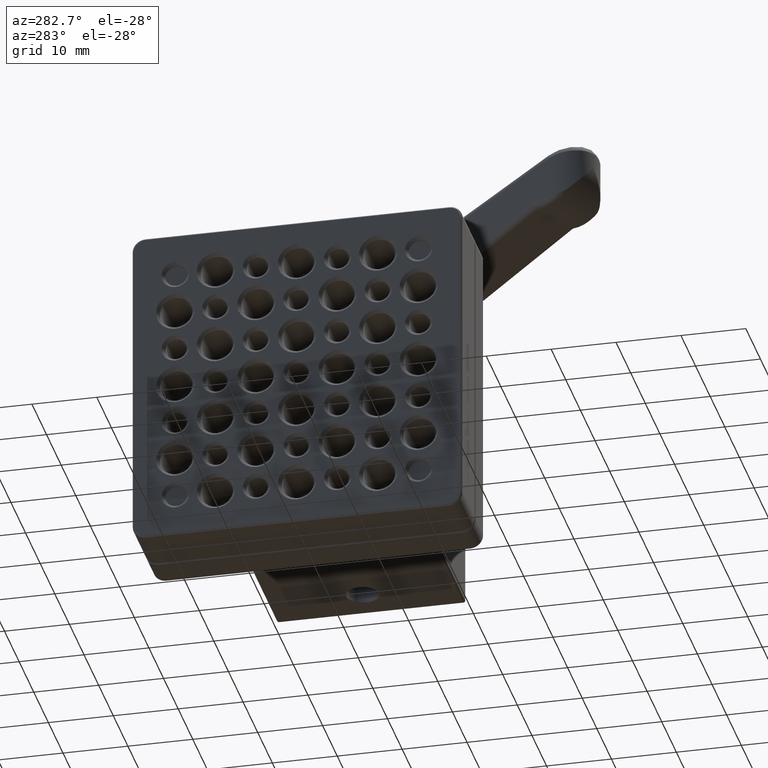
[diagram: clean part render]
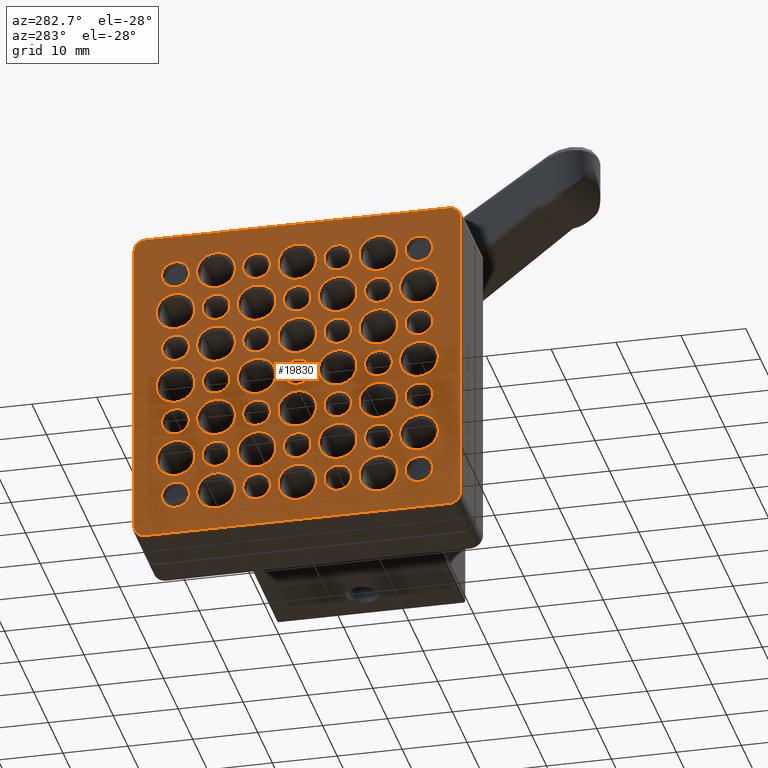
[diagram: same view with one face highlighted and labeled with its STEP entity id]
A machine part, auxiliary view. The second image highlights one B-rep face of the part: STEP entity #19830.
In plain terms, the highlighted planar face has unit normal (1, 0, 0).
Its self-contained STEP definition (entity closure, byte-faithful):
#46 = CARTESIAN_POINT ( 'NONE',  ( -4.445000000000000284, 3.435298852032811170E-15, -25.14999999999999858 ) ) ;
#116 = CARTESIAN_POINT ( 'NONE',  ( -4.445000000000000284, -12.50000000000000178, 3.249999999999997780 ) ) ;
#136 = EDGE_LOOP ( 'NONE', ( #20984, #19444 ) ) ;
#188 = ORIENTED_EDGE ( 'NONE', *, *, #4269, .F. ) ;
#215 = FACE_BOUND ( 'NONE', #1997, .T. ) ;
#222 = ORIENTED_EDGE ( 'NONE', *, *, #19142, .F. ) ;
#247 = EDGE_CURVE ( 'NONE', #18679, #21224, #13297, .T. ) ;
#262 = EDGE_CURVE ( 'NONE', #7430, #11534, #16185, .T. ) ;
#265 = AXIS2_PLACEMENT_3D ( 'NONE', #16991, #18717, #3812 ) ;
#277 = CIRCLE ( 'NONE', #16247, 2.999999999999999112 ) ;
#293 = AXIS2_PLACEMENT_3D ( 'NONE', #2072, #3174, #8685 ) ;
#294 = CIRCLE ( 'NONE', #16624, 2.999999999999999112 ) ;
#311 = CARTESIAN_POINT ( 'NONE',  ( -4.445000000000000284, -12.50000000000000000, -10.35000000000000497 ) ) ;
#344 = VERTEX_POINT ( 'NONE', #4052 ) ;
#415 = EDGE_LOOP ( 'NONE', ( #17142, #16034 ) ) ;
#436 = CARTESIAN_POINT ( 'NONE',  ( -4.445000000000000284, 12.50000000000000000, -12.50000000000000000 ) ) ;
#460 = AXIS2_PLACEMENT_3D ( 'NONE', #7865, #2864, #14508 ) ;
#488 = VERTEX_POINT ( 'NONE', #6439 ) ;
#518 = EDGE_CURVE ( 'NONE', #1577, #2208, #11676, .T. ) ;
#524 = EDGE_LOOP ( 'NONE', ( #9450, #10185 ) ) ;
#532 = FACE_BOUND ( 'NONE', #11521, .T. ) ;
#540 = CARTESIAN_POINT ( 'NONE',  ( -4.445000000000000284, 12.50000000000000000, -10.35000000000000142 ) ) ;
#543 = AXIS2_PLACEMENT_3D ( 'NONE', #16845, #1618, #7029 ) ;
#560 = EDGE_CURVE ( 'NONE', #15215, #9604, #3250, .T. ) ;
#576 = ORIENTED_EDGE ( 'NONE', *, *, #12617, .T. ) ;
#585 = CIRCLE ( 'NONE', #14153, 2.149999999999999023 ) ;
#632 = FACE_BOUND ( 'NONE', #2984, .T. ) ;
#662 = AXIS2_PLACEMENT_3D ( 'NONE', #9759, #16512, #8220 ) ;
#667 = DIRECTION ( 'NONE',  ( -1.000000000000000000, -0.000000000000000000, -0.000000000000000000 ) ) ;
#816 = CIRCLE ( 'NONE', #18873, 2.149999999999999023 ) ;
#822 = AXIS2_PLACEMENT_3D ( 'NONE', #16431, #3026, #16656 ) ;
#823 = AXIS2_PLACEMENT_3D ( 'NONE', #14444, #5947, #20753 ) ;
#880 = CARTESIAN_POINT ( 'NONE',  ( -4.445000000000000284, -25.14999999999999858, 0.000000000000000000 ) ) ;
#928 = AXIS2_PLACEMENT_3D ( 'NONE', #5617, #17374, #2472 ) ;
#970 = EDGE_CURVE ( 'NONE', #3542, #7166, #3891, .T. ) ;
#981 = CARTESIAN_POINT ( 'NONE',  ( -4.445000000000000284, 12.50000000000000000, 10.35000000000000142 ) ) ;
#1003 = DIRECTION ( 'NONE',  ( 0.000000000000000000, 0.000000000000000000, 1.000000000000000000 ) ) ;
#1050 = CARTESIAN_POINT ( 'NONE',  ( -4.445000000000002061, -6.250000000000001776, 6.249999999999998224 ) ) ;
#1056 = VERTEX_POINT ( 'NONE', #4525 ) ;
#1072 = DIRECTION ( 'NONE',  ( 0.000000000000000000, 0.000000000000000000, 1.000000000000000000 ) ) ;
#1113 = CARTESIAN_POINT ( 'NONE',  ( -4.445000000000000284, 12.50000000000000000, 2.149999999999999023 ) ) ;
#1116 = DIRECTION ( 'NONE',  ( -1.000000000000000000, -0.000000000000000000, -0.000000000000000000 ) ) ;
#1136 = DIRECTION ( 'NONE',  ( -1.000000000000000000, -0.000000000000000000, -0.000000000000000000 ) ) ;
#1143 = DIRECTION ( 'NONE',  ( -1.000000000000000000, -0.000000000000000000, -0.000000000000000000 ) ) ;
#1156 = CARTESIAN_POINT ( 'NONE',  ( -4.445000000000000284, -12.50000000000000000, -14.65000000000000391 ) ) ;
#1159 = ORIENTED_EDGE ( 'NONE', *, *, #8249, .F. ) ;
#1173 = AXIS2_PLACEMENT_3D ( 'NONE', #10643, #2479, #4306 ) ;
#1174 = DIRECTION ( 'NONE',  ( 0.000000000000000000, 0.000000000000000000, 1.000000000000000000 ) ) ;
#1183 = CARTESIAN_POINT ( 'NONE',  ( -4.445000000000002061, -6.250000000000001776, 8.399999999999998579 ) ) ;
#1192 = ORIENTED_EDGE ( 'NONE', *, *, #13119, .T. ) ;
#1234 = DIRECTION ( 'NONE',  ( 0.000000000000000000, 0.000000000000000000, 1.000000000000000000 ) ) ;
#1254 = DIRECTION ( 'NONE',  ( 0.000000000000000000, 0.000000000000000000, 1.000000000000000000 ) ) ;
#1287 = DIRECTION ( 'NONE',  ( 0.000000000000000000, 0.000000000000000000, 1.000000000000000000 ) ) ;
#1297 = EDGE_LOOP ( 'NONE', ( #3658, #8536 ) ) ;
#1319 = EDGE_LOOP ( 'NONE', ( #3066, #18265 ) ) ;
#1323 = DIRECTION ( 'NONE',  ( 0.000000000000000000, 0.000000000000000000, 1.000000000000000000 ) ) ;
#1326 = VERTEX_POINT ( 'NONE', #11644 ) ;
#1329 = DIRECTION ( 'NONE',  ( 0.000000000000000000, 0.000000000000000000, 1.000000000000000000 ) ) ;
#1336 = DIRECTION ( 'NONE',  ( 0.000000000000000000, 0.000000000000000000, -1.000000000000000000 ) ) ;
#1354 = CARTESIAN_POINT ( 'NONE',  ( -4.445000000000000284, 0.000000000000000000, 2.149999999999998135 ) ) ;
#1356 = CIRCLE ( 'NONE', #6909, 3.000000000000000888 ) ;
#1412 = FACE_BOUND ( 'NONE', #16004, .T. ) ;
#1442 = DIRECTION ( 'NONE',  ( -1.000000000000000000, -0.000000000000000000, -0.000000000000000000 ) ) ;
#1481 = CARTESIAN_POINT ( 'NONE',  ( -4.445000000000000284, -1.734723475976807094E-15, 21.75000000000000711 ) ) ;
#1484 = EDGE_LOOP ( 'NONE', ( #16476, #6972 ) ) ;
#1493 = AXIS2_PLACEMENT_3D ( 'NONE', #21374, #13219, #16808 ) ;
#1499 = CARTESIAN_POINT ( 'NONE',  ( -4.445000000000000284, 12.50000000000000000, 0.000000000000000000 ) ) ;
#1501 = CARTESIAN_POINT ( 'NONE',  ( -4.445000000000000284, -6.249999999999998224, -12.50000000000000355 ) ) ;
#1522 = AXIS2_PLACEMENT_3D ( 'NONE', #8282, #10035, #4795 ) ;
#1523 = DIRECTION ( 'NONE',  ( 0.000000000000000000, 0.000000000000000000, 1.000000000000000000 ) ) ;
#1532 = FACE_BOUND ( 'NONE', #14782, .T. ) ;
#1577 = VERTEX_POINT ( 'NONE', #9884 ) ;
#1618 = DIRECTION ( 'NONE',  ( -1.000000000000000000, -0.000000000000000000, -0.000000000000000000 ) ) ;
#1756 = CARTESIAN_POINT ( 'NONE',  ( -4.445000000000002061, 6.249999999999998224, -18.75000000000000000 ) ) ;
#1856 = FACE_BOUND ( 'NONE', #15157, .T. ) ;
#1878 = EDGE_LOOP ( 'NONE', ( #8532, #7066 ) ) ;
#1882 = CARTESIAN_POINT ( 'NONE',  ( -4.445000000000000284, -18.75000000000000355, -9.500000000000007105 ) ) ;
#1951 = PLANE ( 'NONE',  #5997 ) ;
#1960 = ORIENTED_EDGE ( 'NONE', *, *, #518, .T. ) ;
#1997 = EDGE_LOOP ( 'NONE', ( #17041, #19308 ) ) ;
#2027 = ORIENTED_EDGE ( 'NONE', *, *, #20220, .T. ) ;
#2055 = EDGE_LOOP ( 'NONE', ( #14277, #14211 ) ) ;
#2063 = CARTESIAN_POINT ( 'NONE',  ( -4.445000000000000284, 6.250000000000001776, 12.50000000000000000 ) ) ;
#2072 = CARTESIAN_POINT ( 'NONE',  ( -4.445000000000002061, -18.75000000000000711, -18.75000000000000355 ) ) ;
#2078 = CIRCLE ( 'NONE', #21164, 2.999999999999999112 ) ;
#2082 = AXIS2_PLACEMENT_3D ( 'NONE', #10931, #2660, #1254 ) ;
#2100 = DIRECTION ( 'NONE',  ( -1.000000000000000000, -0.000000000000000000, -0.000000000000000000 ) ) ;
#2111 = DIRECTION ( 'NONE',  ( -1.000000000000000000, -0.000000000000000000, -0.000000000000000000 ) ) ;
#2166 = FACE_BOUND ( 'NONE', #11344, .T. ) ;
#2208 = VERTEX_POINT ( 'NONE', #20289 ) ;
#2213 = VERTEX_POINT ( 'NONE', #12125 ) ;
#2237 = VERTEX_POINT ( 'NONE', #18649 ) ;
#2261 = CARTESIAN_POINT ( 'NONE',  ( -4.445000000000000284, 6.250000000000001776, -3.000000000000000888 ) ) ;
#2266 = FACE_BOUND ( 'NONE', #6874, .T. ) ;
#2293 = CIRCLE ( 'NONE', #8877, 2.149999999999999023 ) ;
#2306 = EDGE_LOOP ( 'NONE', ( #3920, #3823 ) ) ;
#2307 = AXIS2_PLACEMENT_3D ( 'NONE', #18256, #5100, #11630 ) ;
#2343 = CIRCLE ( 'NONE', #265, 2.149999999999999023 ) ;
#2384 = CARTESIAN_POINT ( 'NONE',  ( -4.445000000000000284, -18.75000000000000355, 2.999999999999993783 ) ) ;
#2400 = EDGE_CURVE ( 'NONE', #11235, #5235, #5990, .T. ) ;
#2433 = CARTESIAN_POINT ( 'NONE',  ( -4.445000000000000284, -12.50000000000000000, -12.50000000000000355 ) ) ;
#2466 = DIRECTION ( 'NONE',  ( -1.000000000000000000, -0.000000000000000000, -0.000000000000000000 ) ) ;
#2472 = DIRECTION ( 'NONE',  ( 0.000000000000000000, 0.000000000000000000, 1.000000000000000000 ) ) ;
#2479 = DIRECTION ( 'NONE',  ( -1.000000000000000000, -0.000000000000000000, -0.000000000000000000 ) ) ;
#2502 = AXIS2_PLACEMENT_3D ( 'NONE', #7519, #4257, #10900 ) ;
#2504 = DIRECTION ( 'NONE',  ( -1.000000000000000000, -0.000000000000000000, -0.000000000000000000 ) ) ;
#2517 = AXIS2_PLACEMENT_3D ( 'NONE', #9213, #6855, #4093 ) ;
#2519 = AXIS2_PLACEMENT_3D ( 'NONE', #19656, #4857, #9657 ) ;
#2523 = ORIENTED_EDGE ( 'NONE', *, *, #17241, .F. ) ;
#2529 = CIRCLE ( 'NONE', #1493, 2.999999999999999112 ) ;
#2552 = CIRCLE ( 'NONE', #10203, 2.149999999999999023 ) ;
#2642 = DIRECTION ( 'NONE',  ( 0.000000000000000000, 0.000000000000000000, 1.000000000000000000 ) ) ;
#2657 = EDGE_CURVE ( 'NONE', #3247, #20503, #14514, .T. ) ;
#2660 = DIRECTION ( 'NONE',  ( -1.000000000000000000, -0.000000000000000000, -0.000000000000000000 ) ) ;
#2661 = CARTESIAN_POINT ( 'NONE',  ( -4.445000000000002061, 6.249999999999998224, -16.60000000000000142 ) ) ;
#2666 = CARTESIAN_POINT ( 'NONE',  ( -4.445000000000002061, 18.75000000000000000, 6.250000000000001776 ) ) ;
#2680 = CARTESIAN_POINT ( 'NONE',  ( -4.445000000000000284, 12.49999999999999822, 9.250000000000003553 ) ) ;
#2694 = CIRCLE ( 'NONE', #3384, 2.999999999999999112 ) ;
#2730 = DIRECTION ( 'NONE',  ( -1.000000000000000000, -0.000000000000000000, -0.000000000000000000 ) ) ;
#2741 = CARTESIAN_POINT ( 'NONE',  ( -4.445000000000000284, -23.40000000000000213, 23.40000000000000213 ) ) ;
#2743 = CARTESIAN_POINT ( 'NONE',  ( -4.445000000000000284, 12.49999999999999822, 18.75000000000000711 ) ) ;
#2770 = CARTESIAN_POINT ( 'NONE',  ( -4.445000000000002061, -6.250000000000001776, -18.75000000000000355 ) ) ;
#2812 = VERTEX_POINT ( 'NONE', #8875 ) ;
#2843 = CARTESIAN_POINT ( 'NONE',  ( -4.445000000000000284, -1.717649426016405782E-15, 25.15000000000000213 ) ) ;
#2858 = EDGE_CURVE ( 'NONE', #4379, #18760, #12412, .T. ) ;
#2864 = DIRECTION ( 'NONE',  ( -1.000000000000000000, -0.000000000000000000, -0.000000000000000000 ) ) ;
#2912 = CARTESIAN_POINT ( 'NONE',  ( -4.445000000000000284, 12.49999999999999822, -6.249999999999998224 ) ) ;
#2915 = DIRECTION ( 'NONE',  ( -1.000000000000000000, -0.000000000000000000, -0.000000000000000000 ) ) ;
#2917 = ORIENTED_EDGE ( 'NONE', *, *, #3407, .F. ) ;
#2921 = FACE_BOUND ( 'NONE', #16108, .T. ) ;
#2936 = CARTESIAN_POINT ( 'NONE',  ( -4.445000000000000284, -6.249999999999998224, 2.999999999999996447 ) ) ;
#2956 = CARTESIAN_POINT ( 'NONE',  ( -4.445000000000000284, 0.000000000000000000, -12.50000000000000178 ) ) ;
#2984 = EDGE_LOOP ( 'NONE', ( #15612, #18577 ) ) ;
#3006 = EDGE_CURVE ( 'NONE', #16138, #488, #13823, .T. ) ;
#3007 = CARTESIAN_POINT ( 'NONE',  ( -4.445000000000002061, 18.75000000000000000, -20.89999999999999858 ) ) ;
#3026 = DIRECTION ( 'NONE',  ( -1.000000000000000000, -0.000000000000000000, -0.000000000000000000 ) ) ;
#3027 = EDGE_CURVE ( 'NONE', #5491, #9509, #15552, .T. ) ;
#3029 = DIRECTION ( 'NONE',  ( 0.000000000000000000, 0.000000000000000000, 1.000000000000000000 ) ) ;
#3034 = DIRECTION ( 'NONE',  ( 0.000000000000000000, 0.000000000000000000, 1.000000000000000000 ) ) ;
#3052 = EDGE_LOOP ( 'NONE', ( #11972, #19829 ) ) ;
#3066 = ORIENTED_EDGE ( 'NONE', *, *, #21314, .F. ) ;
#3096 = CIRCLE ( 'NONE', #15605, 2.999999999999999112 ) ;
#3144 = DIRECTION ( 'NONE',  ( 0.000000000000000000, 0.000000000000000000, 1.000000000000000000 ) ) ;
#3171 = DIRECTION ( 'NONE',  ( 0.000000000000000000, 0.000000000000000000, 1.000000000000000000 ) ) ;
#3174 = DIRECTION ( 'NONE',  ( -1.000000000000000000, -0.000000000000000000, -0.000000000000000000 ) ) ;
#3194 = CIRCLE ( 'NONE', #15357, 2.149999999999999023 ) ;
#3230 = EDGE_CURVE ( 'NONE', #19699, #18522, #17312, .T. ) ;
#3235 = ORIENTED_EDGE ( 'NONE', *, *, #17087, .F. ) ;
#3247 = VERTEX_POINT ( 'NONE', #15332 ) ;
#3250 = CIRCLE ( 'NONE', #15415, 3.000000000000000888 ) ;
#3274 = VERTEX_POINT ( 'NONE', #2384 ) ;
#3336 = DIRECTION ( 'NONE',  ( 0.000000000000000000, 0.000000000000000000, 1.000000000000000000 ) ) ;
#3384 = AXIS2_PLACEMENT_3D ( 'NONE', #9730, #14405, #16249 ) ;
#3407 = EDGE_CURVE ( 'NONE', #13461, #10469, #5494, .T. ) ;
#3412 = DIRECTION ( 'NONE',  ( -1.000000000000000000, -0.000000000000000000, -0.000000000000000000 ) ) ;
#3419 = CARTESIAN_POINT ( 'NONE',  ( -4.445000000000000284, 12.50000000000000000, 0.000000000000000000 ) ) ;
#3464 = FACE_BOUND ( 'NONE', #13234, .T. ) ;
#3472 = EDGE_CURVE ( 'NONE', #15913, #15127, #6885, .T. ) ;
#3507 = DIRECTION ( 'NONE',  ( 0.000000000000000000, 0.000000000000000000, 1.000000000000000000 ) ) ;
#3529 = DIRECTION ( 'NONE',  ( -1.000000000000000000, -0.000000000000000000, -0.000000000000000000 ) ) ;
#3537 = VERTEX_POINT ( 'NONE', #6391 ) ;
#3542 = VERTEX_POINT ( 'NONE', #1183 ) ;
#3579 = FACE_BOUND ( 'NONE', #14852, .T. ) ;
#3636 = DIRECTION ( 'NONE',  ( -1.000000000000000000, -0.000000000000000000, -0.000000000000000000 ) ) ;
#3647 = ORIENTED_EDGE ( 'NONE', *, *, #19529, .F. ) ;
#3658 = ORIENTED_EDGE ( 'NONE', *, *, #10951, .F. ) ;
#3686 = AXIS2_PLACEMENT_3D ( 'NONE', #19281, #16132, #1234 ) ;
#3700 = EDGE_CURVE ( 'NONE', #16082, #7435, #10671, .T. ) ;
#3703 = DIRECTION ( 'NONE',  ( 0.000000000000000000, 0.000000000000000000, 1.000000000000000000 ) ) ;
#3724 = VERTEX_POINT ( 'NONE', #10776 ) ;
#3728 = CARTESIAN_POINT ( 'NONE',  ( -4.445000000000000284, -1.734723475976807094E-15, -6.250000000000000000 ) ) ;
#3763 = CARTESIAN_POINT ( 'NONE',  ( -4.445000000000000284, 23.40000000000000213, 23.40000000000000568 ) ) ;
#3783 = FACE_BOUND ( 'NONE', #6298, .T. ) ;
#3812 = DIRECTION ( 'NONE',  ( 0.000000000000000000, 0.000000000000000000, 1.000000000000000000 ) ) ;
#3823 = ORIENTED_EDGE ( 'NONE', *, *, #16775, .F. ) ;
#3834 = DIRECTION ( 'NONE',  ( -1.000000000000000000, -0.000000000000000000, -0.000000000000000000 ) ) ;
#3857 = VERTEX_POINT ( 'NONE', #15328 ) ;
#3860 = VERTEX_POINT ( 'NONE', #9904 ) ;
#3872 = DIRECTION ( 'NONE',  ( 0.000000000000000000, 0.000000000000000000, 1.000000000000000000 ) ) ;
#3887 = CIRCLE ( 'NONE', #4577, 2.999999999999999112 ) ;
#3891 = CIRCLE ( 'NONE', #6672, 2.149999999999999023 ) ;
#3913 = CIRCLE ( 'NONE', #12253, 2.149999999999999023 ) ;
#3920 = ORIENTED_EDGE ( 'NONE', *, *, #970, .F. ) ;
#3974 = DIRECTION ( 'NONE',  ( -1.000000000000000000, -0.000000000000000000, -0.000000000000000000 ) ) ;
#3997 = DIRECTION ( 'NONE',  ( 0.000000000000000000, 0.000000000000000000, 1.000000000000000000 ) ) ;
#4051 = AXIS2_PLACEMENT_3D ( 'NONE', #15777, #14149, #12608 ) ;
#4052 = CARTESIAN_POINT ( 'NONE',  ( -4.445000000000000284, -18.75000000000000355, -3.000000000000004441 ) ) ;
#4085 = VERTEX_POINT ( 'NONE', #311 ) ;
#4093 = DIRECTION ( 'NONE',  ( 0.000000000000000000, 0.000000000000000000, 1.000000000000000000 ) ) ;
#4136 = VERTEX_POINT ( 'NONE', #11626 ) ;
#4138 = EDGE_LOOP ( 'NONE', ( #9931, #19399 ) ) ;
#4157 = DIRECTION ( 'NONE',  ( -1.000000000000000000, -0.000000000000000000, -0.000000000000000000 ) ) ;
#4250 = EDGE_CURVE ( 'NONE', #21248, #16505, #11380, .T. ) ;
#4256 = CARTESIAN_POINT ( 'NONE',  ( -4.445000000000000284, -12.50000000000000178, 9.250000000000000000 ) ) ;
#4257 = DIRECTION ( 'NONE',  ( -1.000000000000000000, -0.000000000000000000, -0.000000000000000000 ) ) ;
#4266 = EDGE_CURVE ( 'NONE', #7151, #5141, #2694, .T. ) ;
#4269 = EDGE_CURVE ( 'NONE', #3860, #2237, #277, .T. ) ;
#4271 = CARTESIAN_POINT ( 'NONE',  ( -4.445000000000000284, -6.249999999999998224, -3.469446951953614189E-15 ) ) ;
#4302 = CARTESIAN_POINT ( 'NONE',  ( -4.445000000000000284, -12.50000000000000178, -6.250000000000001776 ) ) ;
#4306 = DIRECTION ( 'NONE',  ( 0.000000000000000000, 0.000000000000000000, 1.000000000000000000 ) ) ;
#4376 = DIRECTION ( 'NONE',  ( 0.000000000000000000, 0.000000000000000000, 1.000000000000000000 ) ) ;
#4379 = VERTEX_POINT ( 'NONE', #9944 ) ;
#4413 = DIRECTION ( 'NONE',  ( -1.000000000000000000, -0.000000000000000000, -0.000000000000000000 ) ) ;
#4478 = DIRECTION ( 'NONE',  ( 0.000000000000000000, 0.000000000000000000, 1.000000000000000000 ) ) ;
#4490 = CIRCLE ( 'NONE', #5540, 3.000000000000000000 ) ;
#4517 = EDGE_CURVE ( 'NONE', #6117, #17267, #14870, .T. ) ;
#4518 = CARTESIAN_POINT ( 'NONE',  ( -4.445000000000000284, 0.000000000000000000, -1.734723475976807094E-15 ) ) ;
#4520 = AXIS2_PLACEMENT_3D ( 'NONE', #8095, #14744, #9857 ) ;
#4525 = CARTESIAN_POINT ( 'NONE',  ( -4.445000000000000284, 23.40000000000000213, 25.15000000000000213 ) ) ;
#4568 = DIRECTION ( 'NONE',  ( -1.000000000000000000, -0.000000000000000000, -0.000000000000000000 ) ) ;
#4577 = AXIS2_PLACEMENT_3D ( 'NONE', #11205, #17944, #3034 ) ;
#4584 = VERTEX_POINT ( 'NONE', #15687 ) ;
#4590 = VERTEX_POINT ( 'NONE', #15471 ) ;
#4636 = EDGE_CURVE ( 'NONE', #9074, #6011, #21121, .T. ) ;
#4657 = EDGE_CURVE ( 'NONE', #13057, #17937, #10012, .T. ) ;
#4669 = EDGE_LOOP ( 'NONE', ( #18682, #17745 ) ) ;
#4685 = EDGE_CURVE ( 'NONE', #7388, #10304, #14184, .T. ) ;
#4721 = ORIENTED_EDGE ( 'NONE', *, *, #18046, .T. ) ;
#4752 = EDGE_CURVE ( 'NONE', #18715, #2812, #10703, .T. ) ;
#4790 = CARTESIAN_POINT ( 'NONE',  ( -4.445000000000000284, -18.75000000000000355, -15.50000000000000533 ) ) ;
#4795 = DIRECTION ( 'NONE',  ( 0.000000000000000000, 0.000000000000000000, 1.000000000000000000 ) ) ;
#4857 = DIRECTION ( 'NONE',  ( -1.000000000000000000, -0.000000000000000000, -0.000000000000000000 ) ) ;
#4916 = AXIS2_PLACEMENT_3D ( 'NONE', #3763, #8980, #20624 ) ;
#4919 = ORIENTED_EDGE ( 'NONE', *, *, #11965, .F. ) ;
#4954 = VERTEX_POINT ( 'NONE', #18381 ) ;
#4968 = AXIS2_PLACEMENT_3D ( 'NONE', #12074, #8800, #13605 ) ;
#4973 = AXIS2_PLACEMENT_3D ( 'NONE', #6070, #20669, #19462 ) ;
#4984 = VERTEX_POINT ( 'NONE', #11658 ) ;
#5015 = ORIENTED_EDGE ( 'NONE', *, *, #7110, .F. ) ;
#5017 = CARTESIAN_POINT ( 'NONE',  ( -4.445000000000002061, -6.250000000000001776, 4.099999999999999645 ) ) ;
#5018 = DIRECTION ( 'NONE',  ( 0.000000000000000000, 0.000000000000000000, 1.000000000000000000 ) ) ;
#5033 = ORIENTED_EDGE ( 'NONE', *, *, #12113, .F. ) ;
#5038 = VERTEX_POINT ( 'NONE', #13927 ) ;
#5068 = CARTESIAN_POINT ( 'NONE',  ( -4.445000000000002061, -6.250000000000001776, -20.90000000000000213 ) ) ;
#5087 = CIRCLE ( 'NONE', #17248, 2.999999999999999112 ) ;
#5100 = DIRECTION ( 'NONE',  ( -1.000000000000000000, -0.000000000000000000, -0.000000000000000000 ) ) ;
#5102 = AXIS2_PLACEMENT_3D ( 'NONE', #16032, #7437, #2642 ) ;
#5141 = VERTEX_POINT ( 'NONE', #11078 ) ;
#5186 = ORIENTED_EDGE ( 'NONE', *, *, #4250, .F. ) ;
#5193 = ORIENTED_EDGE ( 'NONE', *, *, #19894, .F. ) ;
#5215 = FACE_BOUND ( 'NONE', #10959, .T. ) ;
#5235 = VERTEX_POINT ( 'NONE', #6498 ) ;
#5241 = ORIENTED_EDGE ( 'NONE', *, *, #16031, .F. ) ;
#5278 = CARTESIAN_POINT ( 'NONE',  ( -4.445000000000002061, -18.75000000000000711, -8.400000000000002132 ) ) ;
#5281 = EDGE_CURVE ( 'NONE', #4954, #16772, #7237, .T. ) ;
#5287 = VECTOR ( 'NONE', #12507, 1000.000000000000000 ) ;
#5334 = VECTOR ( 'NONE', #5781, 1000.000000000000000 ) ;
#5365 = DIRECTION ( 'NONE',  ( -1.000000000000000000, -0.000000000000000000, -0.000000000000000000 ) ) ;
#5414 = DIRECTION ( 'NONE',  ( -1.000000000000000000, -0.000000000000000000, -0.000000000000000000 ) ) ;
#5464 = CARTESIAN_POINT ( 'NONE',  ( -4.445000000000000284, -23.39999999999999858, 25.14999999999999858 ) ) ;
#5491 = VERTEX_POINT ( 'NONE', #15635 ) ;
#5494 = CIRCLE ( 'NONE', #20106, 2.149999999999999023 ) ;
#5523 = FACE_BOUND ( 'NONE', #1878, .T. ) ;
#5540 = AXIS2_PLACEMENT_3D ( 'NONE', #3728, #20492, #8728 ) ;
#5546 = EDGE_CURVE ( 'NONE', #19802, #12229, #19390, .T. ) ;
#5548 = EDGE_CURVE ( 'NONE', #20118, #3857, #11771, .T. ) ;
#5554 = DIRECTION ( 'NONE',  ( 0.000000000000000000, 0.000000000000000000, 1.000000000000000000 ) ) ;
#5582 = EDGE_CURVE ( 'NONE', #16218, #16614, #6200, .T. ) ;
#5617 = CARTESIAN_POINT ( 'NONE',  ( -4.445000000000000284, 18.75000000000000355, 12.50000000000000000 ) ) ;
#5642 = CARTESIAN_POINT ( 'NONE',  ( -4.445000000000002061, -18.75000000000000711, 6.249999999999998224 ) ) ;
#5648 = CIRCLE ( 'NONE', #460, 2.150000000000000799 ) ;
#5676 = CARTESIAN_POINT ( 'NONE',  ( -4.445000000000000284, 12.50000000000000000, -12.50000000000000000 ) ) ;
#5678 = VERTEX_POINT ( 'NONE', #10299 ) ;
#5700 = ORIENTED_EDGE ( 'NONE', *, *, #12400, .F. ) ;
#5715 = CARTESIAN_POINT ( 'NONE',  ( -4.445000000000000284, -12.50000000000000178, 21.75000000000000711 ) ) ;
#5733 = CARTESIAN_POINT ( 'NONE',  ( -4.445000000000000284, -12.50000000000000178, 18.75000000000000711 ) ) ;
#5781 = DIRECTION ( 'NONE',  ( 0.000000000000000000, 0.000000000000000000, -1.000000000000000000 ) ) ;
#5787 = DIRECTION ( 'NONE',  ( -1.000000000000000000, -0.000000000000000000, -0.000000000000000000 ) ) ;
#5828 = ORIENTED_EDGE ( 'NONE', *, *, #12704, .F. ) ;
#5885 = CARTESIAN_POINT ( 'NONE',  ( -4.445000000000000284, 18.75000000000000355, 0.000000000000000000 ) ) ;
#5930 = ORIENTED_EDGE ( 'NONE', *, *, #18251, .F. ) ;
#5947 = DIRECTION ( 'NONE',  ( -1.000000000000000000, -0.000000000000000000, -0.000000000000000000 ) ) ;
#5958 = VERTEX_POINT ( 'NONE', #13394 ) ;
#5965 = ORIENTED_EDGE ( 'NONE', *, *, #8188, .F. ) ;
#5979 = CIRCLE ( 'NONE', #16777, 3.000000000000000888 ) ;
#5990 = CIRCLE ( 'NONE', #10173, 3.000000000000000000 ) ;
#5991 = ORIENTED_EDGE ( 'NONE', *, *, #12165, .F. ) ;
#5997 = AXIS2_PLACEMENT_3D ( 'NONE', #8785, #7152, #20429 ) ;
#6011 = VERTEX_POINT ( 'NONE', #20020 ) ;
#6035 = CARTESIAN_POINT ( 'NONE',  ( -4.445000000000002061, 18.75000000000000000, -8.399999999999998579 ) ) ;
#6070 = CARTESIAN_POINT ( 'NONE',  ( -4.445000000000000284, -1.734723475976807094E-15, -18.75000000000000000 ) ) ;
#6089 = DIRECTION ( 'NONE',  ( 0.000000000000000000, 0.000000000000000000, 1.000000000000000000 ) ) ;
#6117 = VERTEX_POINT ( 'NONE', #540 ) ;
#6200 = CIRCLE ( 'NONE', #662, 2.999999999999999112 ) ;
#6260 = AXIS2_PLACEMENT_3D ( 'NONE', #10174, #3529, #15174 ) ;
#6298 = EDGE_LOOP ( 'NONE', ( #5033, #19612 ) ) ;
#6306 = CIRCLE ( 'NONE', #13964, 2.149999999999999023 ) ;
#6315 = DIRECTION ( 'NONE',  ( -1.000000000000000000, -0.000000000000000000, -0.000000000000000000 ) ) ;
#6327 = AXIS2_PLACEMENT_3D ( 'NONE', #6479, #18559, #21401 ) ;
#6347 = DIRECTION ( 'NONE',  ( 0.000000000000000000, 0.000000000000000000, 1.000000000000000000 ) ) ;
#6391 = CARTESIAN_POINT ( 'NONE',  ( -4.445000000000002061, -18.75000000000000711, 20.89999999999999858 ) ) ;
#6430 = CARTESIAN_POINT ( 'NONE',  ( -4.445000000000000284, -12.50000000000000178, 6.249999999999998224 ) ) ;
#6439 = CARTESIAN_POINT ( 'NONE',  ( -4.445000000000002061, 18.75000000000000000, 20.90000000000000568 ) ) ;
#6466 = CARTESIAN_POINT ( 'NONE',  ( -4.445000000000000284, -1.734723475976807094E-15, 6.250000000000001776 ) ) ;
#6479 = CARTESIAN_POINT ( 'NONE',  ( -4.445000000000002061, -18.75000000000000711, -6.250000000000003553 ) ) ;
#6488 = CIRCLE ( 'NONE', #18290, 2.999999999999999112 ) ;
#6498 = CARTESIAN_POINT ( 'NONE',  ( -4.445000000000000284, -6.249999999999998224, -3.000000000000003553 ) ) ;
#6501 = EDGE_CURVE ( 'NONE', #1326, #2213, #6776, .T. ) ;
#6515 = AXIS2_PLACEMENT_3D ( 'NONE', #10632, #7247, #20530 ) ;
#6525 = AXIS2_PLACEMENT_3D ( 'NONE', #7844, #11325, #3171 ) ;
#6609 = CIRCLE ( 'NONE', #7643, 2.149999999999999023 ) ;
#6657 = DIRECTION ( 'NONE',  ( 0.000000000000000000, -1.000000000000000000, -1.365923996832131856E-16 ) ) ;
#6672 = AXIS2_PLACEMENT_3D ( 'NONE', #16173, #4413, #1174 ) ;
#6704 = CARTESIAN_POINT ( 'NONE',  ( -4.445000000000000284, -6.249999999999998224, 9.499999999999998224 ) ) ;
#6707 = ORIENTED_EDGE ( 'NONE', *, *, #5281, .F. ) ;
#6708 = CIRCLE ( 'NONE', #1522, 2.999999999999999112 ) ;
#6733 = CARTESIAN_POINT ( 'NONE',  ( -4.445000000000000284, -12.50000000000000178, -15.75000000000000000 ) ) ;
#6749 = ORIENTED_EDGE ( 'NONE', *, *, #3027, .T. ) ;
#6769 = CARTESIAN_POINT ( 'NONE',  ( -4.445000000000000284, -12.50000000000000178, 6.249999999999998224 ) ) ;
#6776 = CIRCLE ( 'NONE', #543, 2.149999999999999023 ) ;
#6802 = AXIS2_PLACEMENT_3D ( 'NONE', #21023, #15917, #14290 ) ;
#6833 = FACE_BOUND ( 'NONE', #20972, .T. ) ;
#6855 = DIRECTION ( 'NONE',  ( -1.000000000000000000, -0.000000000000000000, -0.000000000000000000 ) ) ;
#6874 = EDGE_LOOP ( 'NONE', ( #14482, #5991 ) ) ;
#6879 = EDGE_LOOP ( 'NONE', ( #2027, #1192, #6749, #576, #17525, #20415, #4721, #1960 ) ) ;
#6885 = CIRCLE ( 'NONE', #16276, 2.999999999999999112 ) ;
#6909 = AXIS2_PLACEMENT_3D ( 'NONE', #18364, #16541, #3029 ) ;
#6914 = EDGE_CURVE ( 'NONE', #10304, #7388, #15827, .T. ) ;
#6927 = EDGE_CURVE ( 'NONE', #5678, #15668, #10279, .T. ) ;
#6941 = FACE_BOUND ( 'NONE', #12049, .T. ) ;
#6948 = ORIENTED_EDGE ( 'NONE', *, *, #6501, .F. ) ;
#6959 = CARTESIAN_POINT ( 'NONE',  ( -4.445000000000002061, -18.75000000000000711, 8.399999999999998579 ) ) ;
#6972 = ORIENTED_EDGE ( 'NONE', *, *, #21404, .F. ) ;
#6973 = DIRECTION ( 'NONE',  ( 0.000000000000000000, 0.000000000000000000, 1.000000000000000000 ) ) ;
#6975 = VERTEX_POINT ( 'NONE', #4790 ) ;
#6977 = DIRECTION ( 'NONE',  ( -1.000000000000000000, -0.000000000000000000, -0.000000000000000000 ) ) ;
#6993 = DIRECTION ( 'NONE',  ( 0.000000000000000000, 0.000000000000000000, 1.000000000000000000 ) ) ;
#7026 = ORIENTED_EDGE ( 'NONE', *, *, #5546, .F. ) ;
#7029 = DIRECTION ( 'NONE',  ( 0.000000000000000000, 0.000000000000000000, 1.000000000000000000 ) ) ;
#7039 = CIRCLE ( 'NONE', #12589, 3.000000000000000888 ) ;
#7050 = CIRCLE ( 'NONE', #9493, 2.999999999999999112 ) ;
#7051 = EDGE_LOOP ( 'NONE', ( #18403, #14963 ) ) ;
#7057 = DIRECTION ( 'NONE',  ( 0.000000000000000000, 0.000000000000000000, 1.000000000000000000 ) ) ;
#7066 = ORIENTED_EDGE ( 'NONE', *, *, #17245, .F. ) ;
#7078 = VERTEX_POINT ( 'NONE', #16339 ) ;
#7106 = CARTESIAN_POINT ( 'NONE',  ( -4.445000000000000284, -1.367329436232601256E-15, -21.75000000000000000 ) ) ;
#7110 = EDGE_CURVE ( 'NONE', #20872, #4584, #2293, .T. ) ;
#7151 = VERTEX_POINT ( 'NONE', #8278 ) ;
#7152 = DIRECTION ( 'NONE',  ( 1.000000000000000000, 0.000000000000000000, 0.000000000000000000 ) ) ;
#7159 = CIRCLE ( 'NONE', #2307, 3.000000000000002665 ) ;
#7166 = VERTEX_POINT ( 'NONE', #5017 ) ;
#7200 = CARTESIAN_POINT ( 'NONE',  ( -4.445000000000000284, 6.250000000000001776, -1.734723475976807094E-15 ) ) ;
#7217 = AXIS2_PLACEMENT_3D ( 'NONE', #5885, #14382, #6089 ) ;
#7237 = CIRCLE ( 'NONE', #15239, 2.999999999999999112 ) ;
#7245 = CARTESIAN_POINT ( 'NONE',  ( -4.445000000000000284, -12.50000000000000000, 10.34999999999999787 ) ) ;
#7247 = DIRECTION ( 'NONE',  ( -1.000000000000000000, -0.000000000000000000, -0.000000000000000000 ) ) ;
#7262 = AXIS2_PLACEMENT_3D ( 'NONE', #19703, #6315, #5018 ) ;
#7264 = FACE_BOUND ( 'NONE', #18407, .T. ) ;
#7351 = CARTESIAN_POINT ( 'NONE',  ( -4.445000000000000284, 18.75000000000000355, -2.999999999999999112 ) ) ;
#7385 = CIRCLE ( 'NONE', #16788, 2.999999999999999112 ) ;
#7388 = VERTEX_POINT ( 'NONE', #8915 ) ;
#7392 = CARTESIAN_POINT ( 'NONE',  ( -4.445000000000000284, 6.250000000000001776, -12.50000000000000178 ) ) ;
#7400 = AXIS2_PLACEMENT_3D ( 'NONE', #12714, #2504, #17609 ) ;
#7430 = VERTEX_POINT ( 'NONE', #15771 ) ;
#7435 = VERTEX_POINT ( 'NONE', #12497 ) ;
#7437 = DIRECTION ( 'NONE',  ( -1.000000000000000000, -0.000000000000000000, -0.000000000000000000 ) ) ;
#7474 = CARTESIAN_POINT ( 'NONE',  ( -4.445000000000000284, -12.50000000000000178, -3.250000000000001332 ) ) ;
#7519 = CARTESIAN_POINT ( 'NONE',  ( -4.445000000000000284, 12.50000000000000000, 12.50000000000000000 ) ) ;
#7531 = DIRECTION ( 'NONE',  ( 0.000000000000000000, 0.000000000000000000, 1.000000000000000000 ) ) ;
#7534 = CARTESIAN_POINT ( 'NONE',  ( -4.445000000000000284, 12.49999999999999822, -9.250000000000000000 ) ) ;
#7576 = CARTESIAN_POINT ( 'NONE',  ( -4.445000000000002061, -18.75000000000000711, -16.60000000000000497 ) ) ;
#7617 = CIRCLE ( 'NONE', #11820, 3.000000000000002665 ) ;
#7622 = CARTESIAN_POINT ( 'NONE',  ( -4.445000000000002061, 6.249999999999998224, 6.250000000000001776 ) ) ;
#7642 = ORIENTED_EDGE ( 'NONE', *, *, #5548, .F. ) ;
#7643 = AXIS2_PLACEMENT_3D ( 'NONE', #1050, #20945, #12355 ) ;
#7660 = CARTESIAN_POINT ( 'NONE',  ( -4.445000000000000284, -1.734723475976807094E-15, -3.250000000000000444 ) ) ;
#7690 = CARTESIAN_POINT ( 'NONE',  ( -4.445000000000002061, -18.75000000000000711, -6.250000000000003553 ) ) ;
#7699 = CARTESIAN_POINT ( 'NONE',  ( -4.445000000000000284, -12.50000000000000000, -12.50000000000000355 ) ) ;
#7775 = DIRECTION ( 'NONE',  ( 0.000000000000000000, 0.000000000000000000, 1.000000000000000000 ) ) ;
#7835 = EDGE_CURVE ( 'NONE', #6975, #19414, #3096, .T. ) ;
#7844 = CARTESIAN_POINT ( 'NONE',  ( -4.445000000000002061, -6.250000000000001776, 18.75000000000000711 ) ) ;
#7865 = CARTESIAN_POINT ( 'NONE',  ( -4.445000000000000284, 0.000000000000000000, -12.50000000000000178 ) ) ;
#7907 = AXIS2_PLACEMENT_3D ( 'NONE', #2741, #4157, #1336 ) ;
#7914 = DIRECTION ( 'NONE',  ( -1.000000000000000000, -0.000000000000000000, -0.000000000000000000 ) ) ;
#7915 = EDGE_LOOP ( 'NONE', ( #13273, #19140 ) ) ;
#7920 = AXIS2_PLACEMENT_3D ( 'NONE', #18336, #16736, #19876 ) ;
#7984 = CARTESIAN_POINT ( 'NONE',  ( -4.445000000000002061, 18.75000000000000000, -4.099999999999999645 ) ) ;
#8003 = CARTESIAN_POINT ( 'NONE',  ( -4.445000000000000284, 18.75000000000000355, -15.50000000000000000 ) ) ;
#8041 = VERTEX_POINT ( 'NONE', #12686 ) ;
#8045 = AXIS2_PLACEMENT_3D ( 'NONE', #14793, #16545, #11646 ) ;
#8058 = CARTESIAN_POINT ( 'NONE',  ( -4.445000000000002061, 18.75000000000000000, -18.75000000000000000 ) ) ;
#8062 = DIRECTION ( 'NONE',  ( 0.000000000000000000, 0.000000000000000000, 1.000000000000000000 ) ) ;
#8082 = ORIENTED_EDGE ( 'NONE', *, *, #9044, .F. ) ;
#8095 = CARTESIAN_POINT ( 'NONE',  ( -4.445000000000002061, 6.249999999999998224, -18.75000000000000000 ) ) ;
#8117 = DIRECTION ( 'NONE',  ( -1.000000000000000000, -0.000000000000000000, -0.000000000000000000 ) ) ;
#8141 = FACE_BOUND ( 'NONE', #4669, .T. ) ;
#8159 = EDGE_LOOP ( 'NONE', ( #222, #11713 ) ) ;
#8188 = EDGE_CURVE ( 'NONE', #16729, #14506, #8315, .T. ) ;
#8220 = DIRECTION ( 'NONE',  ( 0.000000000000000000, 0.000000000000000000, 1.000000000000000000 ) ) ;
#8229 = CIRCLE ( 'NONE', #19339, 2.149999999999999023 ) ;
#8245 = EDGE_LOOP ( 'NONE', ( #5828, #8854 ) ) ;
#8246 = EDGE_CURVE ( 'NONE', #15127, #15913, #20103, .T. ) ;
#8249 = EDGE_CURVE ( 'NONE', #7435, #16082, #16637, .T. ) ;
#8261 = VERTEX_POINT ( 'NONE', #6704 ) ;
#8268 = AXIS2_PLACEMENT_3D ( 'NONE', #11497, #13134, #3336 ) ;
#8278 = CARTESIAN_POINT ( 'NONE',  ( -4.445000000000000284, 6.250000000000001776, -9.500000000000003553 ) ) ;
#8282 = CARTESIAN_POINT ( 'NONE',  ( -4.445000000000000284, -18.75000000000000355, -12.50000000000000533 ) ) ;
#8294 = VERTEX_POINT ( 'NONE', #1113 ) ;
#8315 = CIRCLE ( 'NONE', #7920, 2.149999999999999023 ) ;
#8324 = AXIS2_PLACEMENT_3D ( 'NONE', #17566, #17668, #20826 ) ;
#8334 = CIRCLE ( 'NONE', #10444, 2.149999999999999023 ) ;
#8339 = DIRECTION ( 'NONE',  ( 0.000000000000000000, 0.000000000000000000, 1.000000000000000000 ) ) ;
#8357 = CARTESIAN_POINT ( 'NONE',  ( -4.445000000000002061, -18.75000000000000711, -20.90000000000000213 ) ) ;
#8363 = ORIENTED_EDGE ( 'NONE', *, *, #12667, .F. ) ;
#8365 = DIRECTION ( 'NONE',  ( -1.000000000000000000, -0.000000000000000000, -0.000000000000000000 ) ) ;
#8369 = ORIENTED_EDGE ( 'NONE', *, *, #11074, .F. ) ;
#8372 = DIRECTION ( 'NONE',  ( 0.000000000000000000, 0.000000000000000000, 1.000000000000000000 ) ) ;
#8411 = AXIS2_PLACEMENT_3D ( 'NONE', #1499, #21175, #14331 ) ;
#8426 = EDGE_CURVE ( 'NONE', #20205, #18952, #12446, .T. ) ;
#8439 = CARTESIAN_POINT ( 'NONE',  ( -4.445000000000002061, 18.75000000000000000, -16.60000000000000142 ) ) ;
#8462 = VERTEX_POINT ( 'NONE', #18076 ) ;
#8466 = FACE_BOUND ( 'NONE', #8159, .T. ) ;
#8515 = EDGE_CURVE ( 'NONE', #20234, #9497, #10020, .T. ) ;
#8532 = ORIENTED_EDGE ( 'NONE', *, *, #19929, .F. ) ;
#8536 = ORIENTED_EDGE ( 'NONE', *, *, #13948, .F. ) ;
#8567 = FACE_BOUND ( 'NONE', #21146, .T. ) ;
#8583 = CIRCLE ( 'NONE', #10674, 2.149999999999999023 ) ;
#8608 = CIRCLE ( 'NONE', #20768, 2.150000000000000799 ) ;
#8624 = AXIS2_PLACEMENT_3D ( 'NONE', #3419, #10063, #14633 ) ;
#8667 = ORIENTED_EDGE ( 'NONE', *, *, #9872, .F. ) ;
#8677 = EDGE_LOOP ( 'NONE', ( #10817, #3647 ) ) ;
#8678 = FACE_BOUND ( 'NONE', #14115, .T. ) ;
#8685 = DIRECTION ( 'NONE',  ( 0.000000000000000000, 0.000000000000000000, 1.000000000000000000 ) ) ;
#8728 = DIRECTION ( 'NONE',  ( 0.000000000000000000, 0.000000000000000000, 1.000000000000000000 ) ) ;
#8783 = AXIS2_PLACEMENT_3D ( 'NONE', #2063, #5414, #12059 ) ;
#8785 = CARTESIAN_POINT ( 'NONE',  ( -4.445000000000000284, 0.000000000000000000, 0.000000000000000000 ) ) ;
#8800 = DIRECTION ( 'NONE',  ( -1.000000000000000000, -0.000000000000000000, -0.000000000000000000 ) ) ;
#8801 = CIRCLE ( 'NONE', #1173, 2.149999999999999023 ) ;
#8854 = ORIENTED_EDGE ( 'NONE', *, *, #560, .F. ) ;
#8875 = CARTESIAN_POINT ( 'NONE',  ( -4.445000000000000284, -1.367329436232601256E-15, 3.250000000000002220 ) ) ;
#8877 = AXIS2_PLACEMENT_3D ( 'NONE', #13515, #18282, #3703 ) ;
#8888 = FACE_BOUND ( 'NONE', #13945, .T. ) ;
#8912 = EDGE_CURVE ( 'NONE', #15188, #3724, #7159, .T. ) ;
#8915 = CARTESIAN_POINT ( 'NONE',  ( -4.445000000000000284, 18.75000000000000355, 2.999999999999999112 ) ) ;
#8976 = AXIS2_PLACEMENT_3D ( 'NONE', #4518, #19213, #11161 ) ;
#8980 = DIRECTION ( 'NONE',  ( -1.000000000000000000, -0.000000000000000000, -0.000000000000000000 ) ) ;
#8999 = DIRECTION ( 'NONE',  ( 0.000000000000000000, 0.000000000000000000, 1.000000000000000000 ) ) ;
#9015 = DIRECTION ( 'NONE',  ( -1.000000000000000000, -0.000000000000000000, -0.000000000000000000 ) ) ;
#9044 = EDGE_CURVE ( 'NONE', #7078, #8462, #10311, .T. ) ;
#9074 = VERTEX_POINT ( 'NONE', #2261 ) ;
#9078 = ORIENTED_EDGE ( 'NONE', *, *, #14313, .F. ) ;
#9088 = EDGE_LOOP ( 'NONE', ( #18970, #13094 ) ) ;
#9213 = CARTESIAN_POINT ( 'NONE',  ( -4.445000000000000284, 6.250000000000001776, -1.734723475976807094E-15 ) ) ;
#9230 = ORIENTED_EDGE ( 'NONE', *, *, #15546, .F. ) ;
#9321 = DIRECTION ( 'NONE',  ( -1.000000000000000000, -0.000000000000000000, -0.000000000000000000 ) ) ;
#9399 = EDGE_CURVE ( 'NONE', #5958, #8261, #6488, .T. ) ;
#9400 = EDGE_LOOP ( 'NONE', ( #8363, #18557 ) ) ;
#9408 = CARTESIAN_POINT ( 'NONE',  ( -4.445000000000000284, -12.50000000000000178, -18.75000000000000355 ) ) ;
#9450 = ORIENTED_EDGE ( 'NONE', *, *, #18629, .F. ) ;
#9493 = AXIS2_PLACEMENT_3D ( 'NONE', #7392, #11086, #15773 ) ;
#9495 = CARTESIAN_POINT ( 'NONE',  ( -4.445000000000002061, 6.249999999999998224, -6.250000000000000000 ) ) ;
#9497 = VERTEX_POINT ( 'NONE', #16622 ) ;
#9509 = VERTEX_POINT ( 'NONE', #5464 ) ;
#9604 = VERTEX_POINT ( 'NONE', #4256 ) ;
#9605 = DIRECTION ( 'NONE',  ( 0.000000000000000000, 0.000000000000000000, 1.000000000000000000 ) ) ;
#9657 = DIRECTION ( 'NONE',  ( 0.000000000000000000, 0.000000000000000000, -1.000000000000000000 ) ) ;
#9663 = AXIS2_PLACEMENT_3D ( 'NONE', #2433, #5787, #14288 ) ;
#9673 = EDGE_LOOP ( 'NONE', ( #16248, #19667 ) ) ;
#9706 = ORIENTED_EDGE ( 'NONE', *, *, #3006, .F. ) ;
#9726 = EDGE_CURVE ( 'NONE', #21224, #18679, #2343, .T. ) ;
#9730 = CARTESIAN_POINT ( 'NONE',  ( -4.445000000000000284, 6.250000000000001776, -12.50000000000000178 ) ) ;
#9759 = CARTESIAN_POINT ( 'NONE',  ( -4.445000000000000284, -18.75000000000000355, 12.49999999999999645 ) ) ;
#9790 = DIRECTION ( 'NONE',  ( -1.000000000000000000, -0.000000000000000000, -0.000000000000000000 ) ) ;
#9812 = ORIENTED_EDGE ( 'NONE', *, *, #16746, .F. ) ;
#9857 = DIRECTION ( 'NONE',  ( 0.000000000000000000, 0.000000000000000000, 1.000000000000000000 ) ) ;
#9872 = EDGE_CURVE ( 'NONE', #16797, #4085, #8583, .T. ) ;
#9874 = VERTEX_POINT ( 'NONE', #12391 ) ;
#9884 = CARTESIAN_POINT ( 'NONE',  ( -4.445000000000000284, 23.40000000000000213, -25.14999999999999503 ) ) ;
#9904 = CARTESIAN_POINT ( 'NONE',  ( -4.445000000000000284, 6.250000000000001776, 15.50000000000000000 ) ) ;
#9931 = ORIENTED_EDGE ( 'NONE', *, *, #14590, .F. ) ;
#9941 = CARTESIAN_POINT ( 'NONE',  ( -4.445000000000000284, 2.632990618166809235E-16, 10.35000000000000142 ) ) ;
#9944 = CARTESIAN_POINT ( 'NONE',  ( -4.445000000000000284, 18.75000000000000355, -9.500000000000001776 ) ) ;
#9999 = EDGE_LOOP ( 'NONE', ( #16534, #11374 ) ) ;
#10012 = CIRCLE ( 'NONE', #15226, 2.149999999999999023 ) ;
#10020 = CIRCLE ( 'NONE', #6525, 2.149999999999999023 ) ;
#10035 = DIRECTION ( 'NONE',  ( -1.000000000000000000, -0.000000000000000000, -0.000000000000000000 ) ) ;
#10063 = DIRECTION ( 'NONE',  ( -1.000000000000000000, -0.000000000000000000, -0.000000000000000000 ) ) ;
#10113 = FACE_BOUND ( 'NONE', #8677, .T. ) ;
#10127 = EDGE_LOOP ( 'NONE', ( #14170, #7026 ) ) ;
#10168 = DIRECTION ( 'NONE',  ( -1.000000000000000000, -0.000000000000000000, -0.000000000000000000 ) ) ;
#10173 = AXIS2_PLACEMENT_3D ( 'NONE', #4271, #11004, #12754 ) ;
#10174 = CARTESIAN_POINT ( 'NONE',  ( -4.445000000000000284, -6.249999999999998224, -3.469446951953614189E-15 ) ) ;
#10185 = ORIENTED_EDGE ( 'NONE', *, *, #4636, .F. ) ;
#10203 = AXIS2_PLACEMENT_3D ( 'NONE', #17938, #9790, #3144 ) ;
#10207 = CIRCLE ( 'NONE', #823, 1.750000000000001554 ) ;
#10219 = FACE_BOUND ( 'NONE', #16776, .T. ) ;
#10235 = EDGE_CURVE ( 'NONE', #12229, #19802, #20032, .T. ) ;
#10241 = VERTEX_POINT ( 'NONE', #17264 ) ;
#10279 = CIRCLE ( 'NONE', #12017, 2.999999999999999112 ) ;
#10299 = CARTESIAN_POINT ( 'NONE',  ( -4.445000000000000284, 12.49999999999999822, -21.75000000000000000 ) ) ;
#10304 = VERTEX_POINT ( 'NONE', #7351 ) ;
#10311 = CIRCLE ( 'NONE', #928, 2.999999999999999112 ) ;
#10326 = FACE_BOUND ( 'NONE', #12569, .T. ) ;
#10379 = AXIS2_PLACEMENT_3D ( 'NONE', #10571, #667, #5554 ) ;
#10390 = DIRECTION ( 'NONE',  ( 0.000000000000000000, 0.000000000000000000, 1.000000000000000000 ) ) ;
#10406 = EDGE_CURVE ( 'NONE', #2812, #18715, #5087, .T. ) ;
#10444 = AXIS2_PLACEMENT_3D ( 'NONE', #2666, #15944, #20835 ) ;
#10447 = DIRECTION ( 'NONE',  ( 0.000000000000000000, 0.000000000000000000, 1.000000000000000000 ) ) ;
#10469 = VERTEX_POINT ( 'NONE', #5278 ) ;
#10542 = FACE_BOUND ( 'NONE', #4138, .T. ) ;
#10543 = CIRCLE ( 'NONE', #12616, 2.149999999999999023 ) ;
#10546 = CARTESIAN_POINT ( 'NONE',  ( -4.445000000000000284, 12.49999999999999822, -18.75000000000000000 ) ) ;
#10571 = CARTESIAN_POINT ( 'NONE',  ( -4.445000000000000284, 12.49999999999999822, 6.250000000000001776 ) ) ;
#10576 = EDGE_CURVE ( 'NONE', #17160, #5038, #20726, .T. ) ;
#10588 = ORIENTED_EDGE ( 'NONE', *, *, #6914, .F. ) ;
#10592 = DIRECTION ( 'NONE',  ( -1.000000000000000000, -0.000000000000000000, -0.000000000000000000 ) ) ;
#10632 = CARTESIAN_POINT ( 'NONE',  ( -4.445000000000000284, -1.734723475976807094E-15, -6.250000000000000000 ) ) ;
#10643 = CARTESIAN_POINT ( 'NONE',  ( -4.445000000000000284, 0.000000000000000000, 12.50000000000000000 ) ) ;
#10671 = CIRCLE ( 'NONE', #4051, 2.149999999999999023 ) ;
#10674 = AXIS2_PLACEMENT_3D ( 'NONE', #7699, #20870, #19128 ) ;
#10684 = AXIS2_PLACEMENT_3D ( 'NONE', #18789, #2466, #3872 ) ;
#10703 = CIRCLE ( 'NONE', #13154, 2.999999999999999112 ) ;
#10776 = CARTESIAN_POINT ( 'NONE',  ( -4.445000000000000284, -12.50000000000000178, -21.75000000000000711 ) ) ;
#10813 = VERTEX_POINT ( 'NONE', #19397 ) ;
#10817 = ORIENTED_EDGE ( 'NONE', *, *, #4266, .F. ) ;
#10852 = CIRCLE ( 'NONE', #11561, 2.999999999999999112 ) ;
#10867 = CIRCLE ( 'NONE', #8783, 2.999999999999999112 ) ;
#10884 = VECTOR ( 'NONE', #16124, 1000.000000000000000 ) ;
#10900 = DIRECTION ( 'NONE',  ( 0.000000000000000000, 0.000000000000000000, 1.000000000000000000 ) ) ;
#10921 = VERTEX_POINT ( 'NONE', #9941 ) ;
#10931 = CARTESIAN_POINT ( 'NONE',  ( -4.445000000000002061, 18.75000000000000000, 18.75000000000000711 ) ) ;
#10946 = EDGE_LOOP ( 'NONE', ( #5700, #5965 ) ) ;
#10951 = EDGE_CURVE ( 'NONE', #3537, #14094, #585, .T. ) ;
#10955 = CARTESIAN_POINT ( 'NONE',  ( -4.445000000000002061, -18.75000000000000711, -18.75000000000000355 ) ) ;
#10959 = EDGE_LOOP ( 'NONE', ( #6948, #21163 ) ) ;
#10975 = CARTESIAN_POINT ( 'NONE',  ( -4.445000000000000284, -6.249999999999998224, -9.500000000000005329 ) ) ;
#10995 = CARTESIAN_POINT ( 'NONE',  ( -4.445000000000000284, 12.49999999999999822, -18.75000000000000000 ) ) ;
#11004 = DIRECTION ( 'NONE',  ( -1.000000000000000000, -0.000000000000000000, -0.000000000000000000 ) ) ;
#11038 = VERTEX_POINT ( 'NONE', #19950 ) ;
#11074 = EDGE_CURVE ( 'NONE', #20315, #16610, #14836, .T. ) ;
#11078 = CARTESIAN_POINT ( 'NONE',  ( -4.445000000000000284, 6.250000000000001776, -15.50000000000000178 ) ) ;
#11079 = CIRCLE ( 'NONE', #13878, 2.999999999999999112 ) ;
#11086 = DIRECTION ( 'NONE',  ( -1.000000000000000000, -0.000000000000000000, -0.000000000000000000 ) ) ;
#11116 = DIRECTION ( 'NONE',  ( 0.000000000000000000, 0.000000000000000000, 1.000000000000000000 ) ) ;
#11120 = LINE ( 'NONE', #17752, #5334 ) ;
#11131 = CIRCLE ( 'NONE', #4520, 2.149999999999999023 ) ;
#11136 = DIRECTION ( 'NONE',  ( -1.000000000000000000, -0.000000000000000000, -0.000000000000000000 ) ) ;
#11161 = DIRECTION ( 'NONE',  ( 0.000000000000000000, 0.000000000000000000, 1.000000000000000000 ) ) ;
#11205 = CARTESIAN_POINT ( 'NONE',  ( -4.445000000000000284, 12.49999999999999822, 18.75000000000000711 ) ) ;
#11235 = VERTEX_POINT ( 'NONE', #2936 ) ;
#11280 = ORIENTED_EDGE ( 'NONE', *, *, #5582, .F. ) ;
#11285 = DIRECTION ( 'NONE',  ( 0.000000000000000000, 0.000000000000000000, 1.000000000000000000 ) ) ;
#11325 = DIRECTION ( 'NONE',  ( -1.000000000000000000, -0.000000000000000000, -0.000000000000000000 ) ) ;
#11344 = EDGE_LOOP ( 'NONE', ( #2523, #8667 ) ) ;
#11348 = EDGE_CURVE ( 'NONE', #18952, #20205, #8229, .T. ) ;
#11372 = ORIENTED_EDGE ( 'NONE', *, *, #17268, .F. ) ;
#11374 = ORIENTED_EDGE ( 'NONE', *, *, #10406, .F. ) ;
#11380 = CIRCLE ( 'NONE', #6515, 3.000000000000000000 ) ;
#11437 = CARTESIAN_POINT ( 'NONE',  ( -4.445000000000000284, 12.49999999999999822, -15.75000000000000000 ) ) ;
#11465 = DIRECTION ( 'NONE',  ( 0.000000000000000000, 0.000000000000000000, 1.000000000000000000 ) ) ;
#11496 = DIRECTION ( 'NONE',  ( -1.000000000000000000, -0.000000000000000000, -0.000000000000000000 ) ) ;
#11497 = CARTESIAN_POINT ( 'NONE',  ( -4.445000000000002061, 6.249999999999998224, 18.75000000000000711 ) ) ;
#11521 = EDGE_LOOP ( 'NONE', ( #18662, #17497 ) ) ;
#11534 = VERTEX_POINT ( 'NONE', #5068 ) ;
#11561 = AXIS2_PLACEMENT_3D ( 'NONE', #18744, #10592, #20377 ) ;
#11577 = CARTESIAN_POINT ( 'NONE',  ( -4.445000000000000284, -1.734723475976807094E-15, -18.75000000000000000 ) ) ;
#11626 = CARTESIAN_POINT ( 'NONE',  ( -4.445000000000000284, 25.14999999999999858, -23.39999999999999503 ) ) ;
#11628 = ORIENTED_EDGE ( 'NONE', *, *, #13268, .F. ) ;
#11630 = DIRECTION ( 'NONE',  ( 0.000000000000000000, 0.000000000000000000, 1.000000000000000000 ) ) ;
#11644 = CARTESIAN_POINT ( 'NONE',  ( -4.445000000000000284, -12.50000000000000000, 2.149999999999995470 ) ) ;
#11646 = DIRECTION ( 'NONE',  ( 0.000000000000000000, 0.000000000000000000, 1.000000000000000000 ) ) ;
#11653 = ORIENTED_EDGE ( 'NONE', *, *, #3472, .F. ) ;
#11655 = DIRECTION ( 'NONE',  ( -1.000000000000000000, -0.000000000000000000, -0.000000000000000000 ) ) ;
#11658 = CARTESIAN_POINT ( 'NONE',  ( -4.445000000000000284, 12.49999999999999822, 15.75000000000000711 ) ) ;
#11676 = LINE ( 'NONE', #46, #17156 ) ;
#11702 = ORIENTED_EDGE ( 'NONE', *, *, #18828, .F. ) ;
#11713 = ORIENTED_EDGE ( 'NONE', *, *, #14743, .F. ) ;
#11738 = CARTESIAN_POINT ( 'NONE',  ( -4.445000000000000284, -12.50000000000000178, 18.75000000000000711 ) ) ;
#11743 = FACE_BOUND ( 'NONE', #9673, .T. ) ;
#11771 = CIRCLE ( 'NONE', #14536, 3.000000000000000888 ) ;
#11795 = EDGE_CURVE ( 'NONE', #8462, #7078, #18152, .T. ) ;
#11820 = AXIS2_PLACEMENT_3D ( 'NONE', #9408, #3412, #13745 ) ;
#11855 = FACE_BOUND ( 'NONE', #19810, .T. ) ;
#11889 = CARTESIAN_POINT ( 'NONE',  ( -4.445000000000000284, -18.75000000000000355, 12.49999999999999645 ) ) ;
#11895 = CARTESIAN_POINT ( 'NONE',  ( -4.445000000000002061, -18.75000000000000711, 18.75000000000000000 ) ) ;
#11961 = FACE_BOUND ( 'NONE', #3052, .T. ) ;
#11965 = EDGE_CURVE ( 'NONE', #3857, #20118, #5979, .T. ) ;
#11972 = ORIENTED_EDGE ( 'NONE', *, *, #20580, .F. ) ;
#12008 = DIRECTION ( 'NONE',  ( 0.000000000000000000, 0.000000000000000000, 1.000000000000000000 ) ) ;
#12017 = AXIS2_PLACEMENT_3D ( 'NONE', #10995, #2730, #1329 ) ;
#12049 = EDGE_LOOP ( 'NONE', ( #17513, #3235 ) ) ;
#12059 = DIRECTION ( 'NONE',  ( 0.000000000000000000, 0.000000000000000000, 1.000000000000000000 ) ) ;
#12074 = CARTESIAN_POINT ( 'NONE',  ( -4.445000000000002061, -18.75000000000000711, 18.75000000000000000 ) ) ;
#12113 = EDGE_CURVE ( 'NONE', #17219, #20705, #5648, .T. ) ;
#12125 = CARTESIAN_POINT ( 'NONE',  ( -4.445000000000000284, -12.50000000000000000, -2.150000000000002576 ) ) ;
#12139 = CARTESIAN_POINT ( 'NONE',  ( -4.445000000000000284, -6.249999999999998224, -15.50000000000000355 ) ) ;
#12165 = EDGE_CURVE ( 'NONE', #14701, #14157, #7385, .T. ) ;
#12229 = VERTEX_POINT ( 'NONE', #1354 ) ;
#12231 = DIRECTION ( 'NONE',  ( -1.000000000000000000, -0.000000000000000000, -0.000000000000000000 ) ) ;
#12252 = CARTESIAN_POINT ( 'NONE',  ( -4.445000000000000284, -18.75000000000000355, 15.49999999999999645 ) ) ;
#12253 = AXIS2_PLACEMENT_3D ( 'NONE', #21086, #2915, #13158 ) ;
#12350 = CARTESIAN_POINT ( 'NONE',  ( -4.445000000000000284, -1.734723475976807094E-15, -15.75000000000000000 ) ) ;
#12355 = DIRECTION ( 'NONE',  ( 0.000000000000000000, 0.000000000000000000, 1.000000000000000000 ) ) ;
#12391 = CARTESIAN_POINT ( 'NONE',  ( -4.445000000000000284, -25.14999999999999858, -23.40000000000000568 ) ) ;
#12400 = EDGE_CURVE ( 'NONE', #14506, #16729, #3913, .T. ) ;
#12412 = CIRCLE ( 'NONE', #10684, 2.999999999999999112 ) ;
#12446 = CIRCLE ( 'NONE', #15908, 2.149999999999999023 ) ;
#12448 = CIRCLE ( 'NONE', #19386, 2.999999999999999112 ) ;
#12474 = DIRECTION ( 'NONE',  ( -1.000000000000000000, -0.000000000000000000, -0.000000000000000000 ) ) ;
#12497 = CARTESIAN_POINT ( 'NONE',  ( -4.445000000000002061, 6.249999999999998224, 20.90000000000000568 ) ) ;
#12507 = DIRECTION ( 'NONE',  ( 0.000000000000000000, -0.000000000000000000, 1.000000000000000000 ) ) ;
#12521 = EDGE_CURVE ( 'NONE', #10241, #10813, #816, .T. ) ;
#12560 = CARTESIAN_POINT ( 'NONE',  ( -4.445000000000002061, -18.75000000000000711, -4.100000000000004974 ) ) ;
#12569 = EDGE_LOOP ( 'NONE', ( #15984, #11653 ) ) ;
#12572 = CARTESIAN_POINT ( 'NONE',  ( -4.445000000000002061, -6.250000000000001776, -8.400000000000000355 ) ) ;
#12589 = AXIS2_PLACEMENT_3D ( 'NONE', #2912, #7914, #14561 ) ;
#12605 = EDGE_CURVE ( 'NONE', #12851, #4136, #11120, .T. ) ;
#12608 = DIRECTION ( 'NONE',  ( 0.000000000000000000, 0.000000000000000000, 1.000000000000000000 ) ) ;
#12616 = AXIS2_PLACEMENT_3D ( 'NONE', #436, #13706, #1287 ) ;
#12617 = EDGE_CURVE ( 'NONE', #9509, #1056, #14491, .T. ) ;
#12632 = DIRECTION ( 'NONE',  ( 0.000000000000000000, 0.000000000000000000, 1.000000000000000000 ) ) ;
#12667 = EDGE_CURVE ( 'NONE', #19414, #6975, #6708, .T. ) ;
#12675 = DIRECTION ( 'NONE',  ( 0.000000000000000000, 0.000000000000000000, 1.000000000000000000 ) ) ;
#12686 = CARTESIAN_POINT ( 'NONE',  ( -4.445000000000000284, 0.000000000000000000, 14.65000000000000036 ) ) ;
#12704 = EDGE_CURVE ( 'NONE', #9604, #15215, #12920, .T. ) ;
#12714 = CARTESIAN_POINT ( 'NONE',  ( -4.445000000000002061, -6.250000000000001776, 18.75000000000000711 ) ) ;
#12753 = CARTESIAN_POINT ( 'NONE',  ( -4.445000000000000284, 12.50000000000000000, 14.65000000000000036 ) ) ;
#12754 = DIRECTION ( 'NONE',  ( 0.000000000000000000, 0.000000000000000000, 1.000000000000000000 ) ) ;
#12816 = DIRECTION ( 'NONE',  ( -1.000000000000000000, -0.000000000000000000, -0.000000000000000000 ) ) ;
#12851 = VERTEX_POINT ( 'NONE', #20357 ) ;
#12899 = DIRECTION ( 'NONE',  ( 0.000000000000000000, 0.000000000000000000, 1.000000000000000000 ) ) ;
#12920 = CIRCLE ( 'NONE', #14014, 3.000000000000000888 ) ;
#12952 = AXIS2_PLACEMENT_3D ( 'NONE', #2770, #21160, #7775 ) ;
#12962 = DIRECTION ( 'NONE',  ( -1.000000000000000000, -0.000000000000000000, -0.000000000000000000 ) ) ;
#13057 = VERTEX_POINT ( 'NONE', #17730 ) ;
#13094 = ORIENTED_EDGE ( 'NONE', *, *, #6927, .F. ) ;
#13096 = DIRECTION ( 'NONE',  ( -1.000000000000000000, -0.000000000000000000, -0.000000000000000000 ) ) ;
#13114 = AXIS2_PLACEMENT_3D ( 'NONE', #20267, #20058, #15155 ) ;
#13119 = EDGE_CURVE ( 'NONE', #9874, #5491, #19137, .T. ) ;
#13134 = DIRECTION ( 'NONE',  ( -1.000000000000000000, -0.000000000000000000, -0.000000000000000000 ) ) ;
#13149 = CIRCLE ( 'NONE', #21470, 2.149999999999999023 ) ;
#13154 = AXIS2_PLACEMENT_3D ( 'NONE', #21116, #4568, #17631 ) ;
#13158 = DIRECTION ( 'NONE',  ( 0.000000000000000000, 0.000000000000000000, 1.000000000000000000 ) ) ;
#13219 = DIRECTION ( 'NONE',  ( -1.000000000000000000, -0.000000000000000000, -0.000000000000000000 ) ) ;
#13234 = EDGE_LOOP ( 'NONE', ( #7642, #4919 ) ) ;
#13268 = EDGE_CURVE ( 'NONE', #8261, #5958, #14664, .T. ) ;
#13273 = ORIENTED_EDGE ( 'NONE', *, *, #15825, .F. ) ;
#13296 = CIRCLE ( 'NONE', #8411, 2.149999999999999023 ) ;
#13297 = CIRCLE ( 'NONE', #3686, 2.149999999999999023 ) ;
#13310 = EDGE_CURVE ( 'NONE', #18843, #4984, #3887, .T. ) ;
#13394 = CARTESIAN_POINT ( 'NONE',  ( -4.445000000000000284, -6.249999999999998224, 15.49999999999999645 ) ) ;
#13404 = EDGE_CURVE ( 'NONE', #14453, #4590, #3194, .T. ) ;
#13461 = VERTEX_POINT ( 'NONE', #12560 ) ;
#13485 = EDGE_LOOP ( 'NONE', ( #5015, #9812 ) ) ;
#13486 = FACE_BOUND ( 'NONE', #1319, .T. ) ;
#13488 = DIRECTION ( 'NONE',  ( -1.000000000000000000, -0.000000000000000000, -0.000000000000000000 ) ) ;
#13515 = CARTESIAN_POINT ( 'NONE',  ( -4.445000000000002061, 18.75000000000000000, 6.250000000000001776 ) ) ;
#13560 = ORIENTED_EDGE ( 'NONE', *, *, #17987, .F. ) ;
#13565 = ORIENTED_EDGE ( 'NONE', *, *, #3700, .F. ) ;
#13566 = EDGE_CURVE ( 'NONE', #11534, #7430, #20593, .T. ) ;
#13567 = CARTESIAN_POINT ( 'NONE',  ( -4.445000000000000284, 12.49999999999999822, 21.75000000000000711 ) ) ;
#13605 = DIRECTION ( 'NONE',  ( 0.000000000000000000, 0.000000000000000000, 1.000000000000000000 ) ) ;
#13606 = CARTESIAN_POINT ( 'NONE',  ( -4.445000000000002061, 18.75000000000000000, -18.75000000000000000 ) ) ;
#13629 = CIRCLE ( 'NONE', #2517, 2.999999999999999112 ) ;
#13678 = AXIS2_PLACEMENT_3D ( 'NONE', #10955, #19655, #8339 ) ;
#13696 = FACE_BOUND ( 'NONE', #415, .T. ) ;
#13706 = DIRECTION ( 'NONE',  ( -1.000000000000000000, -0.000000000000000000, -0.000000000000000000 ) ) ;
#13734 = CARTESIAN_POINT ( 'NONE',  ( -4.445000000000002061, 18.75000000000000000, 8.400000000000000355 ) ) ;
#13745 = DIRECTION ( 'NONE',  ( 0.000000000000000000, 0.000000000000000000, 1.000000000000000000 ) ) ;
#13794 = FACE_BOUND ( 'NONE', #8245, .T. ) ;
#13823 = CIRCLE ( 'NONE', #16623, 2.149999999999999023 ) ;
#13842 = CIRCLE ( 'NONE', #8624, 2.149999999999999023 ) ;
#13878 = AXIS2_PLACEMENT_3D ( 'NONE', #5733, #18904, #3997 ) ;
#13906 = FACE_BOUND ( 'NONE', #1484, .T. ) ;
#13927 = CARTESIAN_POINT ( 'NONE',  ( -4.445000000000000284, 12.49999999999999822, -3.249999999999997780 ) ) ;
#13945 = EDGE_LOOP ( 'NONE', ( #16909, #13560 ) ) ;
#13948 = EDGE_CURVE ( 'NONE', #14094, #3537, #14350, .T. ) ;
#13958 = CARTESIAN_POINT ( 'NONE',  ( -4.445000000000002061, 6.249999999999998224, 16.60000000000000853 ) ) ;
#13964 = AXIS2_PLACEMENT_3D ( 'NONE', #18884, #3974, #15196 ) ;
#13970 = DIRECTION ( 'NONE',  ( -1.000000000000000000, -0.000000000000000000, -0.000000000000000000 ) ) ;
#14014 = AXIS2_PLACEMENT_3D ( 'NONE', #6430, #1442, #8062 ) ;
#14018 = CIRCLE ( 'NONE', #4973, 2.999999999999999112 ) ;
#14094 = VERTEX_POINT ( 'NONE', #20657 ) ;
#14115 = EDGE_LOOP ( 'NONE', ( #20272, #11372 ) ) ;
#14135 = EDGE_CURVE ( 'NONE', #1056, #12851, #18474, .T. ) ;
#14139 = ORIENTED_EDGE ( 'NONE', *, *, #4685, .F. ) ;
#14149 = DIRECTION ( 'NONE',  ( -1.000000000000000000, -0.000000000000000000, -0.000000000000000000 ) ) ;
#14153 = AXIS2_PLACEMENT_3D ( 'NONE', #11895, #6977, #3507 ) ;
#14157 = VERTEX_POINT ( 'NONE', #12350 ) ;
#14169 = ORIENTED_EDGE ( 'NONE', *, *, #15638, .F. ) ;
#14170 = ORIENTED_EDGE ( 'NONE', *, *, #10235, .F. ) ;
#14184 = CIRCLE ( 'NONE', #7217, 2.999999999999999112 ) ;
#14211 = ORIENTED_EDGE ( 'NONE', *, *, #13566, .F. ) ;
#14220 = DIRECTION ( 'NONE',  ( -1.000000000000000000, -0.000000000000000000, -0.000000000000000000 ) ) ;
#14277 = ORIENTED_EDGE ( 'NONE', *, *, #262, .F. ) ;
#14280 = CARTESIAN_POINT ( 'NONE',  ( -4.445000000000000284, 18.75000000000000355, 0.000000000000000000 ) ) ;
#14283 = CARTESIAN_POINT ( 'NONE',  ( -4.445000000000002061, 18.75000000000000000, 16.60000000000000853 ) ) ;
#14284 = DIRECTION ( 'NONE',  ( 0.000000000000000000, 0.000000000000000000, 1.000000000000000000 ) ) ;
#14288 = DIRECTION ( 'NONE',  ( 0.000000000000000000, 0.000000000000000000, 1.000000000000000000 ) ) ;
#14290 = DIRECTION ( 'NONE',  ( 0.000000000000000000, 0.000000000000000000, 1.000000000000000000 ) ) ;
#14313 = EDGE_CURVE ( 'NONE', #17937, #13057, #6306, .T. ) ;
#14331 = DIRECTION ( 'NONE',  ( 0.000000000000000000, 0.000000000000000000, 1.000000000000000000 ) ) ;
#14350 = CIRCLE ( 'NONE', #4968, 2.149999999999999023 ) ;
#14382 = DIRECTION ( 'NONE',  ( -1.000000000000000000, -0.000000000000000000, -0.000000000000000000 ) ) ;
#14395 = DIRECTION ( 'NONE',  ( 0.000000000000000000, 0.000000000000000000, 1.000000000000000000 ) ) ;
#14405 = DIRECTION ( 'NONE',  ( -1.000000000000000000, -0.000000000000000000, -0.000000000000000000 ) ) ;
#14444 = CARTESIAN_POINT ( 'NONE',  ( -4.445000000000000284, 23.40000000000000213, -23.39999999999999503 ) ) ;
#14453 = VERTEX_POINT ( 'NONE', #2661 ) ;
#14482 = ORIENTED_EDGE ( 'NONE', *, *, #19600, .F. ) ;
#14491 = LINE ( 'NONE', #2843, #10884 ) ;
#14494 = CARTESIAN_POINT ( 'NONE',  ( -4.445000000000002061, 18.75000000000000000, 18.75000000000000711 ) ) ;
#14506 = VERTEX_POINT ( 'NONE', #7984 ) ;
#14508 = DIRECTION ( 'NONE',  ( 0.000000000000000000, 0.000000000000000000, 1.000000000000000000 ) ) ;
#14514 = CIRCLE ( 'NONE', #19718, 2.149999999999999023 ) ;
#14536 = AXIS2_PLACEMENT_3D ( 'NONE', #4302, #9321, #17798 ) ;
#14561 = DIRECTION ( 'NONE',  ( 0.000000000000000000, 0.000000000000000000, 1.000000000000000000 ) ) ;
#14590 = EDGE_CURVE ( 'NONE', #8294, #18606, #13842, .T. ) ;
#14595 = ORIENTED_EDGE ( 'NONE', *, *, #4657, .F. ) ;
#14608 = DIRECTION ( 'NONE',  ( -1.000000000000000000, -0.000000000000000000, -0.000000000000000000 ) ) ;
#14633 = DIRECTION ( 'NONE',  ( 0.000000000000000000, 0.000000000000000000, 1.000000000000000000 ) ) ;
#14664 = CIRCLE ( 'NONE', #8045, 2.999999999999999112 ) ;
#14701 = VERTEX_POINT ( 'NONE', #7106 ) ;
#14743 = EDGE_CURVE ( 'NONE', #20360, #16835, #12448, .T. ) ;
#14744 = DIRECTION ( 'NONE',  ( -1.000000000000000000, -0.000000000000000000, -0.000000000000000000 ) ) ;
#14758 = DIRECTION ( 'NONE',  ( 0.000000000000000000, 0.000000000000000000, 1.000000000000000000 ) ) ;
#14759 = CARTESIAN_POINT ( 'NONE',  ( -4.445000000000002061, -6.250000000000001776, -4.100000000000003197 ) ) ;
#14764 = CARTESIAN_POINT ( 'NONE',  ( -4.445000000000002061, -6.250000000000001776, 16.60000000000000853 ) ) ;
#14768 = EDGE_LOOP ( 'NONE', ( #1159, #13565 ) ) ;
#14782 = EDGE_LOOP ( 'NONE', ( #18925, #11628 ) ) ;
#14783 = FACE_BOUND ( 'NONE', #524, .T. ) ;
#14792 = EDGE_CURVE ( 'NONE', #11038, #18670, #15237, .T. ) ;
#14793 = CARTESIAN_POINT ( 'NONE',  ( -4.445000000000000284, -6.249999999999998224, 12.49999999999999645 ) ) ;
#14836 = CIRCLE ( 'NONE', #13114, 2.149999999999999023 ) ;
#14852 = EDGE_LOOP ( 'NONE', ( #5930, #14169 ) ) ;
#14870 = CIRCLE ( 'NONE', #15541, 2.149999999999999023 ) ;
#14963 = ORIENTED_EDGE ( 'NONE', *, *, #8515, .F. ) ;
#15017 = DIRECTION ( 'NONE',  ( 0.000000000000000000, 0.000000000000000000, 1.000000000000000000 ) ) ;
#15030 = CIRCLE ( 'NONE', #6327, 2.149999999999999023 ) ;
#15043 = AXIS2_PLACEMENT_3D ( 'NONE', #21257, #1143, #6347 ) ;
#15046 = AXIS2_PLACEMENT_3D ( 'NONE', #11889, #17002, #6973 ) ;
#15115 = FACE_BOUND ( 'NONE', #2306, .T. ) ;
#15127 = VERTEX_POINT ( 'NONE', #10975 ) ;
#15155 = DIRECTION ( 'NONE',  ( 0.000000000000000000, 0.000000000000000000, 1.000000000000000000 ) ) ;
#15157 = EDGE_LOOP ( 'NONE', ( #14139, #10588 ) ) ;
#15162 = EDGE_CURVE ( 'NONE', #18670, #11038, #1356, .T. ) ;
#15174 = DIRECTION ( 'NONE',  ( 0.000000000000000000, 0.000000000000000000, 1.000000000000000000 ) ) ;
#15188 = VERTEX_POINT ( 'NONE', #6733 ) ;
#15196 = DIRECTION ( 'NONE',  ( 0.000000000000000000, 0.000000000000000000, 1.000000000000000000 ) ) ;
#15215 = VERTEX_POINT ( 'NONE', #116 ) ;
#15216 = FACE_BOUND ( 'NONE', #9088, .T. ) ;
#15226 = AXIS2_PLACEMENT_3D ( 'NONE', #7622, #12962, #1003 ) ;
#15237 = CIRCLE ( 'NONE', #10379, 3.000000000000000888 ) ;
#15239 = AXIS2_PLACEMENT_3D ( 'NONE', #11738, #21421, #1523 ) ;
#15269 = CIRCLE ( 'NONE', #7262, 2.149999999999999023 ) ;
#15324 = FACE_BOUND ( 'NONE', #136, .T. ) ;
#15328 = CARTESIAN_POINT ( 'NONE',  ( -4.445000000000000284, -12.50000000000000178, -9.250000000000003553 ) ) ;
#15332 = CARTESIAN_POINT ( 'NONE',  ( -4.445000000000002061, -18.75000000000000711, 4.099999999999999645 ) ) ;
#15357 = AXIS2_PLACEMENT_3D ( 'NONE', #1756, #8365, #15017 ) ;
#15403 = CIRCLE ( 'NONE', #822, 2.149999999999999023 ) ;
#15407 = EDGE_CURVE ( 'NONE', #15668, #5678, #17329, .T. ) ;
#15415 = AXIS2_PLACEMENT_3D ( 'NONE', #6769, #2100, #16899 ) ;
#15416 = CIRCLE ( 'NONE', #13678, 2.149999999999999023 ) ;
#15424 = CARTESIAN_POINT ( 'NONE',  ( -4.445000000000000284, 2.632990618166809235E-16, -14.65000000000000391 ) ) ;
#15430 = FACE_BOUND ( 'NONE', #9999, .T. ) ;
#15471 = CARTESIAN_POINT ( 'NONE',  ( -4.445000000000002061, 6.249999999999998224, -20.89999999999999858 ) ) ;
#15485 = AXIS2_PLACEMENT_3D ( 'NONE', #14280, #20897, #12632 ) ;
#15526 = FACE_BOUND ( 'NONE', #13485, .T. ) ;
#15541 = AXIS2_PLACEMENT_3D ( 'NONE', #5676, #3834, #20373 ) ;
#15546 = EDGE_CURVE ( 'NONE', #16772, #4954, #11079, .T. ) ;
#15552 = CIRCLE ( 'NONE', #7907, 1.749999999999998002 ) ;
#15589 = CARTESIAN_POINT ( 'NONE',  ( -4.445000000000000284, -1.734723475976807094E-15, 18.75000000000000711 ) ) ;
#15595 = CARTESIAN_POINT ( 'NONE',  ( -4.445000000000000284, 12.50000000000000000, -14.65000000000000036 ) ) ;
#15605 = AXIS2_PLACEMENT_3D ( 'NONE', #18901, #12474, #8999 ) ;
#15612 = ORIENTED_EDGE ( 'NONE', *, *, #19985, .F. ) ;
#15635 = CARTESIAN_POINT ( 'NONE',  ( -4.445000000000000284, -25.14999999999999858, 23.40000000000000213 ) ) ;
#15638 = EDGE_CURVE ( 'NONE', #19654, #17209, #15269, .T. ) ;
#15668 = VERTEX_POINT ( 'NONE', #11437 ) ;
#15687 = CARTESIAN_POINT ( 'NONE',  ( -4.445000000000002061, 18.75000000000000000, 4.100000000000003197 ) ) ;
#15734 = CIRCLE ( 'NONE', #15043, 2.149999999999999023 ) ;
#15771 = CARTESIAN_POINT ( 'NONE',  ( -4.445000000000002061, -6.250000000000001776, -16.60000000000000497 ) ) ;
#15773 = DIRECTION ( 'NONE',  ( 0.000000000000000000, 0.000000000000000000, 1.000000000000000000 ) ) ;
#15777 = CARTESIAN_POINT ( 'NONE',  ( -4.445000000000002061, 6.249999999999998224, 18.75000000000000711 ) ) ;
#15807 = DIRECTION ( 'NONE',  ( -1.000000000000000000, -0.000000000000000000, -0.000000000000000000 ) ) ;
#15825 = EDGE_CURVE ( 'NONE', #3274, #344, #2078, .T. ) ;
#15827 = CIRCLE ( 'NONE', #15485, 2.999999999999999112 ) ;
#15896 = ORIENTED_EDGE ( 'NONE', *, *, #21373, .F. ) ;
#15908 = AXIS2_PLACEMENT_3D ( 'NONE', #8058, #17967, #11116 ) ;
#15913 = VERTEX_POINT ( 'NONE', #12139 ) ;
#15917 = DIRECTION ( 'NONE',  ( -1.000000000000000000, -0.000000000000000000, -0.000000000000000000 ) ) ;
#15944 = DIRECTION ( 'NONE',  ( -1.000000000000000000, -0.000000000000000000, -0.000000000000000000 ) ) ;
#15948 = CARTESIAN_POINT ( 'NONE',  ( -4.445000000000000284, 0.000000000000000000, -1.734723475976807094E-15 ) ) ;
#15984 = ORIENTED_EDGE ( 'NONE', *, *, #8246, .F. ) ;
#16004 = EDGE_LOOP ( 'NONE', ( #16615, #8082 ) ) ;
#16031 = EDGE_CURVE ( 'NONE', #16505, #21248, #4490, .T. ) ;
#16032 = CARTESIAN_POINT ( 'NONE',  ( -4.445000000000000284, 12.49999999999999822, -6.249999999999998224 ) ) ;
#16034 = ORIENTED_EDGE ( 'NONE', *, *, #14792, .F. ) ;
#16043 = CARTESIAN_POINT ( 'NONE',  ( -4.445000000000000284, -1.367329436232601256E-15, 15.75000000000000711 ) ) ;
#16060 = AXIS2_PLACEMENT_3D ( 'NONE', #20087, #12231, #20399 ) ;
#16082 = VERTEX_POINT ( 'NONE', #13958 ) ;
#16108 = EDGE_LOOP ( 'NONE', ( #17754, #11280 ) ) ;
#16124 = DIRECTION ( 'NONE',  ( 0.000000000000000000, 1.000000000000000000, 6.829619984160659279E-17 ) ) ;
#16132 = DIRECTION ( 'NONE',  ( -1.000000000000000000, -0.000000000000000000, -0.000000000000000000 ) ) ;
#16138 = VERTEX_POINT ( 'NONE', #14283 ) ;
#16144 = EDGE_LOOP ( 'NONE', ( #15896, #9706 ) ) ;
#16173 = CARTESIAN_POINT ( 'NONE',  ( -4.445000000000002061, -6.250000000000001776, 6.249999999999998224 ) ) ;
#16185 = CIRCLE ( 'NONE', #6802, 2.149999999999999023 ) ;
#16218 = VERTEX_POINT ( 'NONE', #17968 ) ;
#16247 = AXIS2_PLACEMENT_3D ( 'NONE', #16363, #11136, #4376 ) ;
#16248 = ORIENTED_EDGE ( 'NONE', *, *, #13404, .F. ) ;
#16249 = DIRECTION ( 'NONE',  ( 0.000000000000000000, 0.000000000000000000, 1.000000000000000000 ) ) ;
#16256 = CIRCLE ( 'NONE', #20416, 2.999999999999999112 ) ;
#16276 = AXIS2_PLACEMENT_3D ( 'NONE', #21189, #12816, #11285 ) ;
#16312 = FACE_OUTER_BOUND ( 'NONE', #6879, .T. ) ;
#16339 = CARTESIAN_POINT ( 'NONE',  ( -4.445000000000000284, 18.75000000000000355, 9.500000000000001776 ) ) ;
#16363 = CARTESIAN_POINT ( 'NONE',  ( -4.445000000000000284, 6.250000000000001776, 12.50000000000000000 ) ) ;
#16431 = CARTESIAN_POINT ( 'NONE',  ( -4.445000000000000284, -12.50000000000000000, -3.469446951953614189E-15 ) ) ;
#16447 = CIRCLE ( 'NONE', #7400, 2.149999999999999023 ) ;
#16476 = ORIENTED_EDGE ( 'NONE', *, *, #8912, .F. ) ;
#16505 = VERTEX_POINT ( 'NONE', #18784 ) ;
#16512 = DIRECTION ( 'NONE',  ( -1.000000000000000000, -0.000000000000000000, -0.000000000000000000 ) ) ;
#16534 = ORIENTED_EDGE ( 'NONE', *, *, #4752, .F. ) ;
#16541 = DIRECTION ( 'NONE',  ( -1.000000000000000000, -0.000000000000000000, -0.000000000000000000 ) ) ;
#16545 = DIRECTION ( 'NONE',  ( -1.000000000000000000, -0.000000000000000000, -0.000000000000000000 ) ) ;
#16558 = AXIS2_PLACEMENT_3D ( 'NONE', #15948, #14220, #12675 ) ;
#16610 = VERTEX_POINT ( 'NONE', #7245 ) ;
#16614 = VERTEX_POINT ( 'NONE', #12252 ) ;
#16615 = ORIENTED_EDGE ( 'NONE', *, *, #11795, .F. ) ;
#16622 = CARTESIAN_POINT ( 'NONE',  ( -4.445000000000002061, -6.250000000000001776, 20.90000000000000568 ) ) ;
#16623 = AXIS2_PLACEMENT_3D ( 'NONE', #14494, #14608, #7531 ) ;
#16624 = AXIS2_PLACEMENT_3D ( 'NONE', #2743, #13970, #4478 ) ;
#16637 = CIRCLE ( 'NONE', #8268, 2.149999999999999023 ) ;
#16654 = AXIS2_PLACEMENT_3D ( 'NONE', #10546, #13488, #7057 ) ;
#16656 = DIRECTION ( 'NONE',  ( 0.000000000000000000, 0.000000000000000000, 1.000000000000000000 ) ) ;
#16716 = CIRCLE ( 'NONE', #6260, 3.000000000000000000 ) ;
#16729 = VERTEX_POINT ( 'NONE', #6035 ) ;
#16736 = DIRECTION ( 'NONE',  ( -1.000000000000000000, -0.000000000000000000, -0.000000000000000000 ) ) ;
#16746 = EDGE_CURVE ( 'NONE', #4584, #20872, #8334, .T. ) ;
#16757 = FACE_BOUND ( 'NONE', #14768, .T. ) ;
#16772 = VERTEX_POINT ( 'NONE', #5715 ) ;
#16775 = EDGE_CURVE ( 'NONE', #7166, #3542, #6609, .T. ) ;
#16776 = EDGE_LOOP ( 'NONE', ( #188, #5193 ) ) ;
#16777 = AXIS2_PLACEMENT_3D ( 'NONE', #17769, #1136, #19289 ) ;
#16788 = AXIS2_PLACEMENT_3D ( 'NONE', #11577, #13096, #11465 ) ;
#16797 = VERTEX_POINT ( 'NONE', #1156 ) ;
#16808 = DIRECTION ( 'NONE',  ( 0.000000000000000000, 0.000000000000000000, 1.000000000000000000 ) ) ;
#16835 = VERTEX_POINT ( 'NONE', #1481 ) ;
#16838 = CARTESIAN_POINT ( 'NONE',  ( -4.445000000000000284, -18.75000000000000355, -5.204170427930421283E-15 ) ) ;
#16845 = CARTESIAN_POINT ( 'NONE',  ( -4.445000000000000284, -12.50000000000000000, -3.469446951953614189E-15 ) ) ;
#16863 = FACE_BOUND ( 'NONE', #10946, .T. ) ;
#16899 = DIRECTION ( 'NONE',  ( 0.000000000000000000, 0.000000000000000000, 1.000000000000000000 ) ) ;
#16909 = ORIENTED_EDGE ( 'NONE', *, *, #4517, .F. ) ;
#16939 = DIRECTION ( 'NONE',  ( 0.000000000000000000, 0.000000000000000000, 1.000000000000000000 ) ) ;
#16966 = FACE_BOUND ( 'NONE', #16144, .T. ) ;
#16991 = CARTESIAN_POINT ( 'NONE',  ( -4.445000000000002061, -6.250000000000001776, -6.250000000000001776 ) ) ;
#17000 = EDGE_CURVE ( 'NONE', #4590, #14453, #11131, .T. ) ;
#17002 = DIRECTION ( 'NONE',  ( -1.000000000000000000, -0.000000000000000000, -0.000000000000000000 ) ) ;
#17003 = EDGE_CURVE ( 'NONE', #5235, #11235, #16716, .T. ) ;
#17019 = CIRCLE ( 'NONE', #2082, 2.149999999999999023 ) ;
#17041 = ORIENTED_EDGE ( 'NONE', *, *, #19813, .F. ) ;
#17070 = FACE_BOUND ( 'NONE', #2055, .T. ) ;
#17087 = EDGE_CURVE ( 'NONE', #18760, #4379, #16256, .T. ) ;
#17119 = CARTESIAN_POINT ( 'NONE',  ( -4.445000000000000284, -6.249999999999998224, 12.49999999999999645 ) ) ;
#17142 = ORIENTED_EDGE ( 'NONE', *, *, #15162, .F. ) ;
#17156 = VECTOR ( 'NONE', #6657, 1000.000000000000000 ) ;
#17160 = VERTEX_POINT ( 'NONE', #7534 ) ;
#17175 = FACE_BOUND ( 'NONE', #9400, .T. ) ;
#17209 = VERTEX_POINT ( 'NONE', #12753 ) ;
#17219 = VERTEX_POINT ( 'NONE', #19391 ) ;
#17241 = EDGE_CURVE ( 'NONE', #4085, #16797, #19736, .T. ) ;
#17245 = EDGE_CURVE ( 'NONE', #10921, #8041, #13149, .T. ) ;
#17248 = AXIS2_PLACEMENT_3D ( 'NONE', #6466, #17901, #12899 ) ;
#17264 = CARTESIAN_POINT ( 'NONE',  ( -4.445000000000002061, 6.249999999999998224, -8.400000000000000355 ) ) ;
#17267 = VERTEX_POINT ( 'NONE', #15595 ) ;
#17268 = EDGE_CURVE ( 'NONE', #4984, #18843, #294, .T. ) ;
#17287 = CARTESIAN_POINT ( 'NONE',  ( -4.445000000000002061, 6.249999999999998224, 8.400000000000000355 ) ) ;
#17303 = AXIS2_PLACEMENT_3D ( 'NONE', #7200, #5365, #1323 ) ;
#17312 = CIRCLE ( 'NONE', #293, 2.149999999999999023 ) ;
#17329 = CIRCLE ( 'NONE', #16654, 2.999999999999999112 ) ;
#17357 = CARTESIAN_POINT ( 'NONE',  ( -4.445000000000000284, -12.50000000000000000, 14.64999999999999680 ) ) ;
#17374 = DIRECTION ( 'NONE',  ( -1.000000000000000000, -0.000000000000000000, -0.000000000000000000 ) ) ;
#17469 = EDGE_CURVE ( 'NONE', #20705, #17219, #8608, .T. ) ;
#17497 = ORIENTED_EDGE ( 'NONE', *, *, #8426, .F. ) ;
#17513 = ORIENTED_EDGE ( 'NONE', *, *, #2858, .F. ) ;
#17525 = ORIENTED_EDGE ( 'NONE', *, *, #14135, .T. ) ;
#17561 = EDGE_CURVE ( 'NONE', #16614, #16218, #18514, .T. ) ;
#17566 = CARTESIAN_POINT ( 'NONE',  ( -4.445000000000002061, -18.75000000000000711, 6.249999999999998224 ) ) ;
#17609 = DIRECTION ( 'NONE',  ( 0.000000000000000000, 0.000000000000000000, 1.000000000000000000 ) ) ;
#17631 = DIRECTION ( 'NONE',  ( 0.000000000000000000, 0.000000000000000000, 1.000000000000000000 ) ) ;
#17668 = DIRECTION ( 'NONE',  ( -1.000000000000000000, -0.000000000000000000, -0.000000000000000000 ) ) ;
#17730 = CARTESIAN_POINT ( 'NONE',  ( -4.445000000000002061, 6.249999999999998224, 4.100000000000003197 ) ) ;
#17745 = ORIENTED_EDGE ( 'NONE', *, *, #17003, .F. ) ;
#17752 = CARTESIAN_POINT ( 'NONE',  ( -4.445000000000000284, 25.14999999999999858, 0.000000000000000000 ) ) ;
#17754 = ORIENTED_EDGE ( 'NONE', *, *, #17561, .F. ) ;
#17769 = CARTESIAN_POINT ( 'NONE',  ( -4.445000000000000284, -12.50000000000000178, -6.250000000000001776 ) ) ;
#17798 = DIRECTION ( 'NONE',  ( 0.000000000000000000, 0.000000000000000000, 1.000000000000000000 ) ) ;
#17830 = CIRCLE ( 'NONE', #2502, 2.149999999999999023 ) ;
#17901 = DIRECTION ( 'NONE',  ( -1.000000000000000000, -0.000000000000000000, -0.000000000000000000 ) ) ;
#17937 = VERTEX_POINT ( 'NONE', #17287 ) ;
#17938 = CARTESIAN_POINT ( 'NONE',  ( -4.445000000000002061, 6.249999999999998224, -6.250000000000000000 ) ) ;
#17944 = DIRECTION ( 'NONE',  ( -1.000000000000000000, -0.000000000000000000, -0.000000000000000000 ) ) ;
#17967 = DIRECTION ( 'NONE',  ( -1.000000000000000000, -0.000000000000000000, -0.000000000000000000 ) ) ;
#17968 = CARTESIAN_POINT ( 'NONE',  ( -4.445000000000000284, -18.75000000000000355, 9.499999999999998224 ) ) ;
#17987 = EDGE_CURVE ( 'NONE', #17267, #6117, #10543, .T. ) ;
#18019 = CARTESIAN_POINT ( 'NONE',  ( -4.445000000000000284, -1.734723475976807094E-15, 9.250000000000001776 ) ) ;
#18046 = EDGE_CURVE ( 'NONE', #4136, #1577, #10207, .T. ) ;
#18050 = CARTESIAN_POINT ( 'NONE',  ( -4.445000000000000284, 2.632990618166809235E-16, -2.150000000000001688 ) ) ;
#18076 = CARTESIAN_POINT ( 'NONE',  ( -4.445000000000000284, 18.75000000000000355, 15.50000000000000000 ) ) ;
#18084 = DIRECTION ( 'NONE',  ( -1.000000000000000000, -0.000000000000000000, -0.000000000000000000 ) ) ;
#18152 = CIRCLE ( 'NONE', #16060, 2.999999999999999112 ) ;
#18180 = EDGE_LOOP ( 'NONE', ( #9078, #14595 ) ) ;
#18251 = EDGE_CURVE ( 'NONE', #17209, #19654, #17830, .T. ) ;
#18256 = CARTESIAN_POINT ( 'NONE',  ( -4.445000000000000284, -12.50000000000000178, -18.75000000000000355 ) ) ;
#18265 = ORIENTED_EDGE ( 'NONE', *, *, #2657, .F. ) ;
#18282 = DIRECTION ( 'NONE',  ( -1.000000000000000000, -0.000000000000000000, -0.000000000000000000 ) ) ;
#18290 = AXIS2_PLACEMENT_3D ( 'NONE', #17119, #2111, #12008 ) ;
#18336 = CARTESIAN_POINT ( 'NONE',  ( -4.445000000000002061, 18.75000000000000000, -6.249999999999998224 ) ) ;
#18361 = FACE_BOUND ( 'NONE', #7051, .T. ) ;
#18364 = CARTESIAN_POINT ( 'NONE',  ( -4.445000000000000284, 12.49999999999999822, 6.250000000000001776 ) ) ;
#18381 = CARTESIAN_POINT ( 'NONE',  ( -4.445000000000000284, -12.50000000000000178, 15.75000000000000711 ) ) ;
#18403 = ORIENTED_EDGE ( 'NONE', *, *, #19645, .F. ) ;
#18407 = EDGE_LOOP ( 'NONE', ( #5186, #5241 ) ) ;
#18468 = FACE_BOUND ( 'NONE', #7915, .T. ) ;
#18474 = CIRCLE ( 'NONE', #4916, 1.749999999999998002 ) ;
#18514 = CIRCLE ( 'NONE', #15046, 2.999999999999999112 ) ;
#18522 = VERTEX_POINT ( 'NONE', #7576 ) ;
#18557 = ORIENTED_EDGE ( 'NONE', *, *, #7835, .F. ) ;
#18559 = DIRECTION ( 'NONE',  ( -1.000000000000000000, -0.000000000000000000, -0.000000000000000000 ) ) ;
#18577 = ORIENTED_EDGE ( 'NONE', *, *, #3230, .F. ) ;
#18606 = VERTEX_POINT ( 'NONE', #18995 ) ;
#18629 = EDGE_CURVE ( 'NONE', #6011, #9074, #13629, .T. ) ;
#18649 = CARTESIAN_POINT ( 'NONE',  ( -4.445000000000000284, 6.250000000000001776, 9.500000000000001776 ) ) ;
#18662 = ORIENTED_EDGE ( 'NONE', *, *, #11348, .F. ) ;
#18670 = VERTEX_POINT ( 'NONE', #2680 ) ;
#18679 = VERTEX_POINT ( 'NONE', #12572 ) ;
#18681 = EDGE_CURVE ( 'NONE', #18606, #8294, #13296, .T. ) ;
#18682 = ORIENTED_EDGE ( 'NONE', *, *, #2400, .F. ) ;
#18715 = VERTEX_POINT ( 'NONE', #18019 ) ;
#18717 = DIRECTION ( 'NONE',  ( -1.000000000000000000, -0.000000000000000000, -0.000000000000000000 ) ) ;
#18744 = CARTESIAN_POINT ( 'NONE',  ( -4.445000000000000284, -18.75000000000000355, -5.204170427930421283E-15 ) ) ;
#18760 = VERTEX_POINT ( 'NONE', #8003 ) ;
#18784 = CARTESIAN_POINT ( 'NONE',  ( -4.445000000000000284, -1.367329436232601256E-15, -9.250000000000001776 ) ) ;
#18789 = CARTESIAN_POINT ( 'NONE',  ( -4.445000000000000284, 18.75000000000000355, -12.50000000000000000 ) ) ;
#18828 = EDGE_CURVE ( 'NONE', #10469, #13461, #15030, .T. ) ;
#18843 = VERTEX_POINT ( 'NONE', #13567 ) ;
#18873 = AXIS2_PLACEMENT_3D ( 'NONE', #9495, #1116, #14284 ) ;
#18884 = CARTESIAN_POINT ( 'NONE',  ( -4.445000000000002061, 6.249999999999998224, 6.250000000000001776 ) ) ;
#18901 = CARTESIAN_POINT ( 'NONE',  ( -4.445000000000000284, -18.75000000000000355, -12.50000000000000533 ) ) ;
#18904 = DIRECTION ( 'NONE',  ( -1.000000000000000000, -0.000000000000000000, -0.000000000000000000 ) ) ;
#18925 = ORIENTED_EDGE ( 'NONE', *, *, #9399, .F. ) ;
#18952 = VERTEX_POINT ( 'NONE', #8439 ) ;
#18970 = ORIENTED_EDGE ( 'NONE', *, *, #15407, .F. ) ;
#18995 = CARTESIAN_POINT ( 'NONE',  ( -4.445000000000000284, 12.50000000000000000, -2.149999999999999023 ) ) ;
#19053 = EDGE_CURVE ( 'NONE', #16610, #20315, #15734, .T. ) ;
#19128 = DIRECTION ( 'NONE',  ( 0.000000000000000000, 0.000000000000000000, 1.000000000000000000 ) ) ;
#19137 = LINE ( 'NONE', #880, #5287 ) ;
#19140 = ORIENTED_EDGE ( 'NONE', *, *, #19321, .F. ) ;
#19142 = EDGE_CURVE ( 'NONE', #16835, #20360, #2529, .T. ) ;
#19213 = DIRECTION ( 'NONE',  ( -1.000000000000000000, -0.000000000000000000, -0.000000000000000000 ) ) ;
#19281 = CARTESIAN_POINT ( 'NONE',  ( -4.445000000000002061, -6.250000000000001776, -6.250000000000001776 ) ) ;
#19289 = DIRECTION ( 'NONE',  ( 0.000000000000000000, 0.000000000000000000, 1.000000000000000000 ) ) ;
#19308 = ORIENTED_EDGE ( 'NONE', *, *, #12521, .F. ) ;
#19321 = EDGE_CURVE ( 'NONE', #344, #3274, #10852, .T. ) ;
#19339 = AXIS2_PLACEMENT_3D ( 'NONE', #13606, #11655, #8372 ) ;
#19386 = AXIS2_PLACEMENT_3D ( 'NONE', #15589, #10168, #6993 ) ;
#19390 = CIRCLE ( 'NONE', #8976, 2.149999999999999911 ) ;
#19391 = CARTESIAN_POINT ( 'NONE',  ( -4.445000000000000284, 0.000000000000000000, -10.35000000000000142 ) ) ;
#19397 = CARTESIAN_POINT ( 'NONE',  ( -4.445000000000002061, 6.249999999999998224, -4.100000000000001421 ) ) ;
#19399 = ORIENTED_EDGE ( 'NONE', *, *, #18681, .F. ) ;
#19414 = VERTEX_POINT ( 'NONE', #1882 ) ;
#19444 = ORIENTED_EDGE ( 'NONE', *, *, #247, .F. ) ;
#19462 = DIRECTION ( 'NONE',  ( 0.000000000000000000, 0.000000000000000000, 1.000000000000000000 ) ) ;
#19529 = EDGE_CURVE ( 'NONE', #5141, #7151, #7050, .T. ) ;
#19600 = EDGE_CURVE ( 'NONE', #14157, #14701, #14018, .T. ) ;
#19612 = ORIENTED_EDGE ( 'NONE', *, *, #17469, .F. ) ;
#19645 = EDGE_CURVE ( 'NONE', #9497, #20234, #16447, .T. ) ;
#19654 = VERTEX_POINT ( 'NONE', #981 ) ;
#19655 = DIRECTION ( 'NONE',  ( -1.000000000000000000, -0.000000000000000000, -0.000000000000000000 ) ) ;
#19656 = CARTESIAN_POINT ( 'NONE',  ( -4.445000000000000284, -23.39999999999999858, -23.40000000000000568 ) ) ;
#19667 = ORIENTED_EDGE ( 'NONE', *, *, #17000, .F. ) ;
#19699 = VERTEX_POINT ( 'NONE', #8357 ) ;
#19703 = CARTESIAN_POINT ( 'NONE',  ( -4.445000000000000284, 12.50000000000000000, 12.50000000000000000 ) ) ;
#19718 = AXIS2_PLACEMENT_3D ( 'NONE', #5642, #9015, #10447 ) ;
#19736 = CIRCLE ( 'NONE', #9663, 2.149999999999999023 ) ;
#19778 = DIRECTION ( 'NONE',  ( -1.000000000000000000, -0.000000000000000000, -0.000000000000000000 ) ) ;
#19802 = VERTEX_POINT ( 'NONE', #18050 ) ;
#19810 = EDGE_LOOP ( 'NONE', ( #9230, #6707 ) ) ;
#19813 = EDGE_CURVE ( 'NONE', #10813, #10241, #2552, .T. ) ;
#19825 = EDGE_CURVE ( 'NONE', #2213, #1326, #15403, .T. ) ;
#19829 = ORIENTED_EDGE ( 'NONE', *, *, #10576, .F. ) ;
#19830 = ADVANCED_FACE ( 'NONE', ( #16312, #2921, #1532, #1412, #8141, #14783, #1856, #17175, #10326, #10113, #6833, #5523, #3579, #10542, #3783, #6941, #8888, #11855, #8466, #8678, #13794, #15430, #13696, #3464, #7264, #11961, #13906, #2266, #20541, #16757, #16966, #13486, #15115, #20325, #15526, #8567, #15324, #215, #16863, #632, #17070, #11743, #15216, #532, #18361, #2166, #20121, #5215, #18468, #10219 ), #1951, .F. ) ;
#19876 = DIRECTION ( 'NONE',  ( 0.000000000000000000, 0.000000000000000000, 1.000000000000000000 ) ) ;
#19894 = EDGE_CURVE ( 'NONE', #2237, #3860, #10867, .T. ) ;
#19929 = EDGE_CURVE ( 'NONE', #8041, #10921, #8801, .T. ) ;
#19950 = CARTESIAN_POINT ( 'NONE',  ( -4.445000000000000284, 12.49999999999999822, 3.250000000000001332 ) ) ;
#19985 = EDGE_CURVE ( 'NONE', #18522, #19699, #15416, .T. ) ;
#20020 = CARTESIAN_POINT ( 'NONE',  ( -4.445000000000000284, 6.250000000000001776, 2.999999999999997335 ) ) ;
#20032 = CIRCLE ( 'NONE', #16558, 2.149999999999999911 ) ;
#20058 = DIRECTION ( 'NONE',  ( -1.000000000000000000, -0.000000000000000000, -0.000000000000000000 ) ) ;
#20087 = CARTESIAN_POINT ( 'NONE',  ( -4.445000000000000284, 18.75000000000000355, 12.50000000000000000 ) ) ;
#20103 = CIRCLE ( 'NONE', #20431, 2.999999999999999112 ) ;
#20106 = AXIS2_PLACEMENT_3D ( 'NONE', #7690, #19778, #1072 ) ;
#20118 = VERTEX_POINT ( 'NONE', #7474 ) ;
#20121 = FACE_BOUND ( 'NONE', #10127, .T. ) ;
#20205 = VERTEX_POINT ( 'NONE', #3007 ) ;
#20220 = EDGE_CURVE ( 'NONE', #2208, #9874, #20585, .T. ) ;
#20234 = VERTEX_POINT ( 'NONE', #14764 ) ;
#20267 = CARTESIAN_POINT ( 'NONE',  ( -4.445000000000000284, -12.50000000000000000, 12.49999999999999645 ) ) ;
#20272 = ORIENTED_EDGE ( 'NONE', *, *, #13310, .F. ) ;
#20288 = CARTESIAN_POINT ( 'NONE',  ( -4.445000000000000284, 18.75000000000000355, -12.50000000000000000 ) ) ;
#20289 = CARTESIAN_POINT ( 'NONE',  ( -4.445000000000000284, -23.39999999999999858, -25.15000000000000213 ) ) ;
#20315 = VERTEX_POINT ( 'NONE', #17357 ) ;
#20325 = FACE_BOUND ( 'NONE', #18180, .T. ) ;
#20357 = CARTESIAN_POINT ( 'NONE',  ( -4.445000000000000284, 25.14999999999999858, 23.40000000000000568 ) ) ;
#20360 = VERTEX_POINT ( 'NONE', #16043 ) ;
#20373 = DIRECTION ( 'NONE',  ( 0.000000000000000000, 0.000000000000000000, 1.000000000000000000 ) ) ;
#20377 = DIRECTION ( 'NONE',  ( 0.000000000000000000, 0.000000000000000000, 1.000000000000000000 ) ) ;
#20399 = DIRECTION ( 'NONE',  ( 0.000000000000000000, 0.000000000000000000, 1.000000000000000000 ) ) ;
#20415 = ORIENTED_EDGE ( 'NONE', *, *, #12605, .T. ) ;
#20416 = AXIS2_PLACEMENT_3D ( 'NONE', #20288, #3636, #10390 ) ;
#20429 = DIRECTION ( 'NONE',  ( 0.000000000000000000, 0.000000000000000000, -1.000000000000000000 ) ) ;
#20431 = AXIS2_PLACEMENT_3D ( 'NONE', #1501, #8117, #14758 ) ;
#20492 = DIRECTION ( 'NONE',  ( -1.000000000000000000, -0.000000000000000000, -0.000000000000000000 ) ) ;
#20503 = VERTEX_POINT ( 'NONE', #6959 ) ;
#20530 = DIRECTION ( 'NONE',  ( 0.000000000000000000, 0.000000000000000000, 1.000000000000000000 ) ) ;
#20541 = FACE_BOUND ( 'NONE', #1297, .T. ) ;
#20580 = EDGE_CURVE ( 'NONE', #5038, #17160, #7039, .T. ) ;
#20585 = CIRCLE ( 'NONE', #2519, 1.750000000000001554 ) ;
#20593 = CIRCLE ( 'NONE', #12952, 2.149999999999999023 ) ;
#20624 = DIRECTION ( 'NONE',  ( 0.000000000000000000, 0.000000000000000000, -1.000000000000000000 ) ) ;
#20657 = CARTESIAN_POINT ( 'NONE',  ( -4.445000000000002061, -18.75000000000000711, 16.60000000000000142 ) ) ;
#20669 = DIRECTION ( 'NONE',  ( -1.000000000000000000, -0.000000000000000000, -0.000000000000000000 ) ) ;
#20701 = CARTESIAN_POINT ( 'NONE',  ( -4.445000000000000284, 0.000000000000000000, 12.50000000000000000 ) ) ;
#20705 = VERTEX_POINT ( 'NONE', #15424 ) ;
#20726 = CIRCLE ( 'NONE', #5102, 3.000000000000000888 ) ;
#20753 = DIRECTION ( 'NONE',  ( 0.000000000000000000, 0.000000000000000000, -1.000000000000000000 ) ) ;
#20768 = AXIS2_PLACEMENT_3D ( 'NONE', #2956, #18084, #9605 ) ;
#20819 = CIRCLE ( 'NONE', #8324, 2.149999999999999023 ) ;
#20826 = DIRECTION ( 'NONE',  ( 0.000000000000000000, 0.000000000000000000, 1.000000000000000000 ) ) ;
#20835 = DIRECTION ( 'NONE',  ( 0.000000000000000000, 0.000000000000000000, 1.000000000000000000 ) ) ;
#20870 = DIRECTION ( 'NONE',  ( -1.000000000000000000, -0.000000000000000000, -0.000000000000000000 ) ) ;
#20872 = VERTEX_POINT ( 'NONE', #13734 ) ;
#20897 = DIRECTION ( 'NONE',  ( -1.000000000000000000, -0.000000000000000000, -0.000000000000000000 ) ) ;
#20945 = DIRECTION ( 'NONE',  ( -1.000000000000000000, -0.000000000000000000, -0.000000000000000000 ) ) ;
#20972 = EDGE_LOOP ( 'NONE', ( #8369, #21460 ) ) ;
#20984 = ORIENTED_EDGE ( 'NONE', *, *, #9726, .F. ) ;
#21023 = CARTESIAN_POINT ( 'NONE',  ( -4.445000000000002061, -6.250000000000001776, -18.75000000000000355 ) ) ;
#21086 = CARTESIAN_POINT ( 'NONE',  ( -4.445000000000002061, 18.75000000000000000, -6.249999999999998224 ) ) ;
#21116 = CARTESIAN_POINT ( 'NONE',  ( -4.445000000000000284, -1.734723475976807094E-15, 6.250000000000001776 ) ) ;
#21121 = CIRCLE ( 'NONE', #17303, 2.999999999999999112 ) ;
#21146 = EDGE_LOOP ( 'NONE', ( #2917, #11702 ) ) ;
#21160 = DIRECTION ( 'NONE',  ( -1.000000000000000000, -0.000000000000000000, -0.000000000000000000 ) ) ;
#21163 = ORIENTED_EDGE ( 'NONE', *, *, #19825, .F. ) ;
#21164 = AXIS2_PLACEMENT_3D ( 'NONE', #16838, #11496, #16939 ) ;
#21175 = DIRECTION ( 'NONE',  ( -1.000000000000000000, -0.000000000000000000, -0.000000000000000000 ) ) ;
#21189 = CARTESIAN_POINT ( 'NONE',  ( -4.445000000000000284, -6.249999999999998224, -12.50000000000000355 ) ) ;
#21224 = VERTEX_POINT ( 'NONE', #14759 ) ;
#21248 = VERTEX_POINT ( 'NONE', #7660 ) ;
#21257 = CARTESIAN_POINT ( 'NONE',  ( -4.445000000000000284, -12.50000000000000000, 12.49999999999999645 ) ) ;
#21314 = EDGE_CURVE ( 'NONE', #20503, #3247, #20819, .T. ) ;
#21373 = EDGE_CURVE ( 'NONE', #488, #16138, #17019, .T. ) ;
#21374 = CARTESIAN_POINT ( 'NONE',  ( -4.445000000000000284, -1.734723475976807094E-15, 18.75000000000000711 ) ) ;
#21401 = DIRECTION ( 'NONE',  ( 0.000000000000000000, 0.000000000000000000, 1.000000000000000000 ) ) ;
#21404 = EDGE_CURVE ( 'NONE', #3724, #15188, #7617, .T. ) ;
#21421 = DIRECTION ( 'NONE',  ( -1.000000000000000000, -0.000000000000000000, -0.000000000000000000 ) ) ;
#21460 = ORIENTED_EDGE ( 'NONE', *, *, #19053, .F. ) ;
#21470 = AXIS2_PLACEMENT_3D ( 'NONE', #20701, #15807, #14395 ) ;